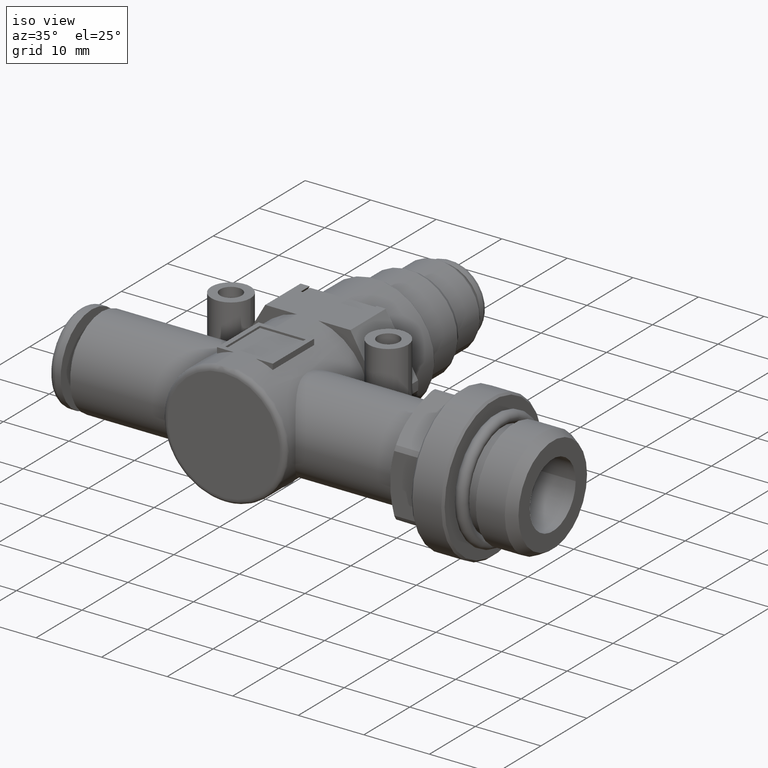
[diagram: clean part render]
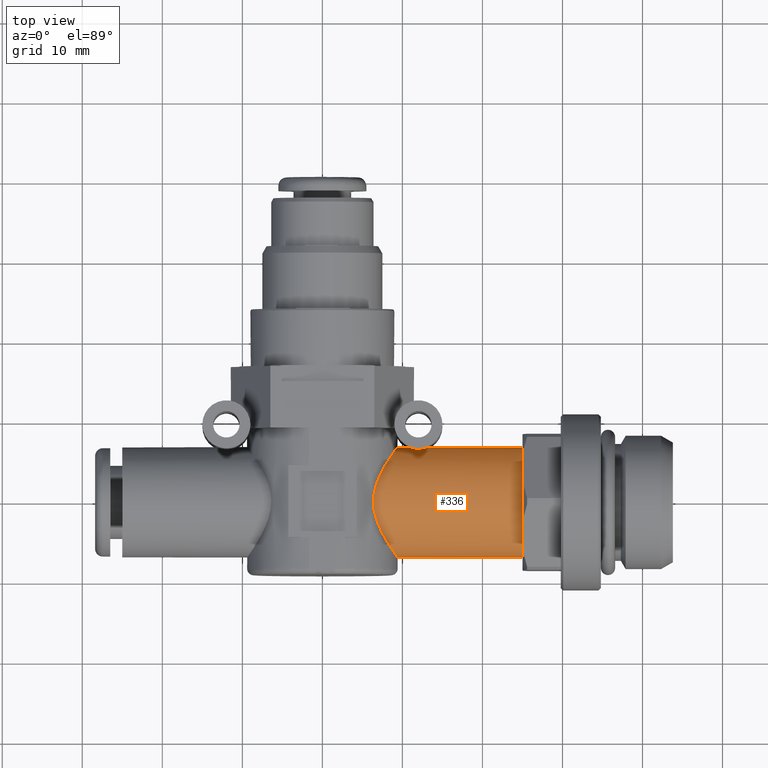
[diagram: tour spotlight — one face highlighted and labeled with its STEP entity id]
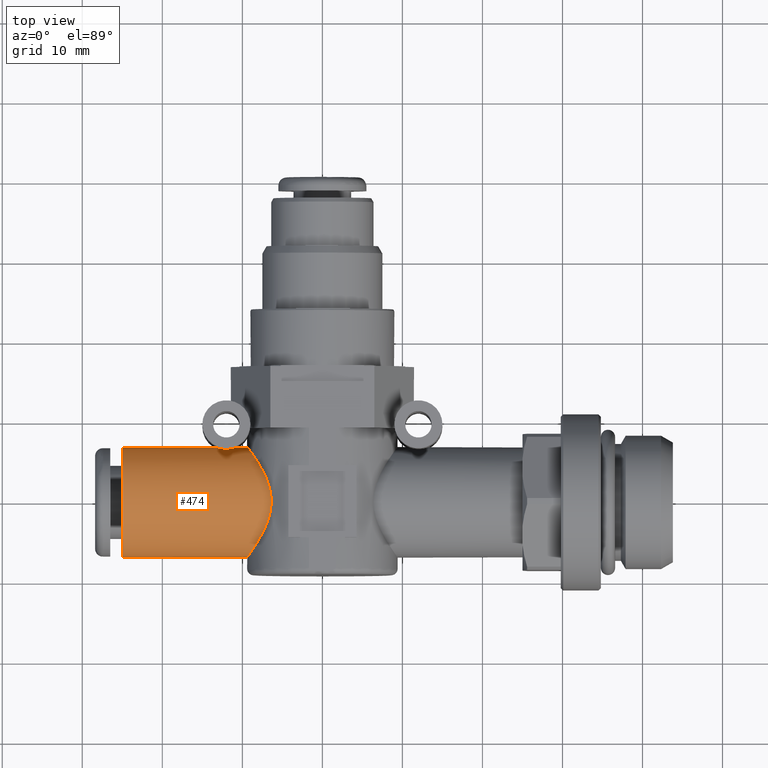
[diagram: tour spotlight — one face highlighted and labeled with its STEP entity id]
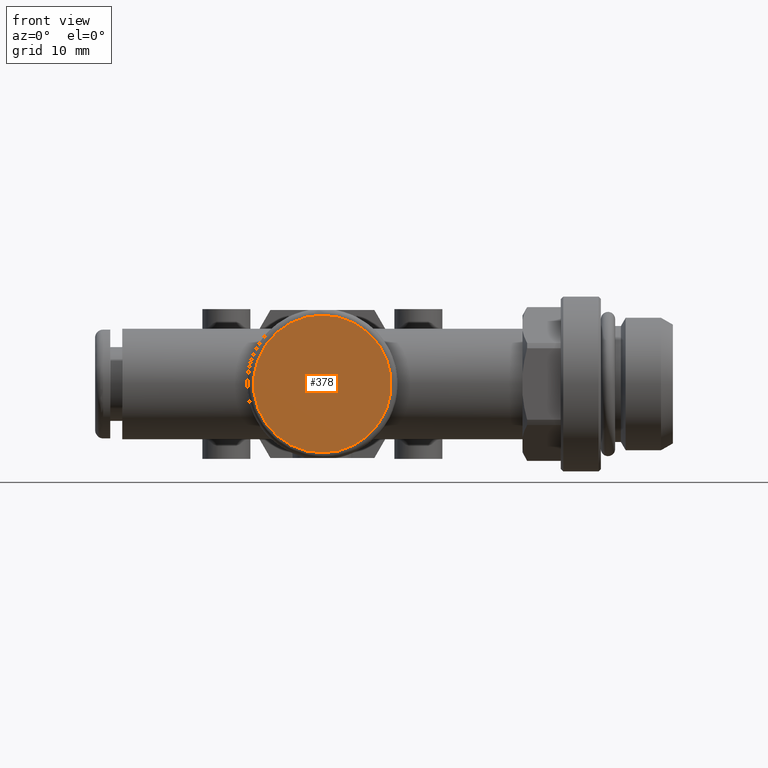
[diagram: tour spotlight — one face highlighted and labeled with its STEP entity id]
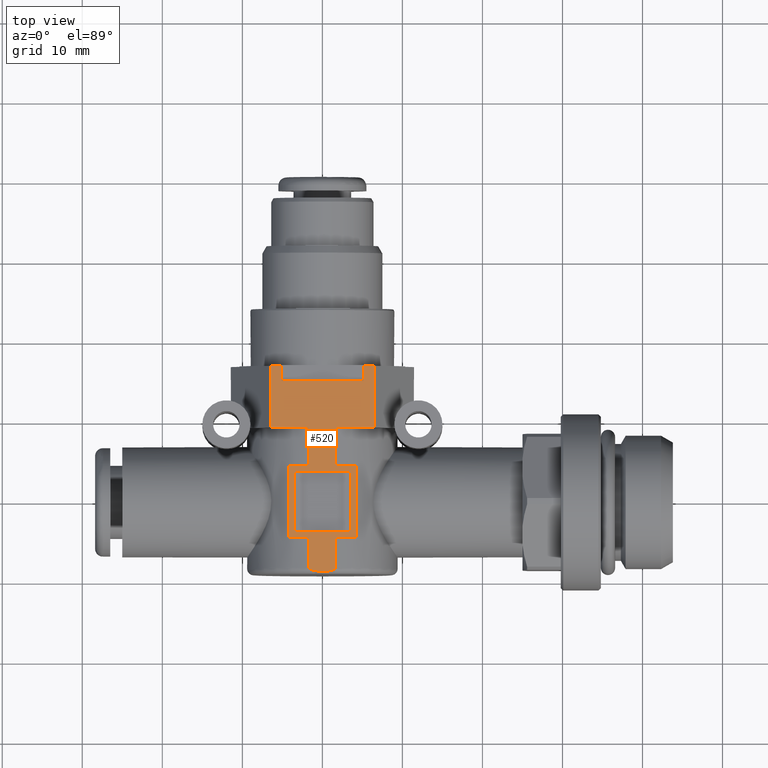
[diagram: tour spotlight — one face highlighted and labeled with its STEP entity id]
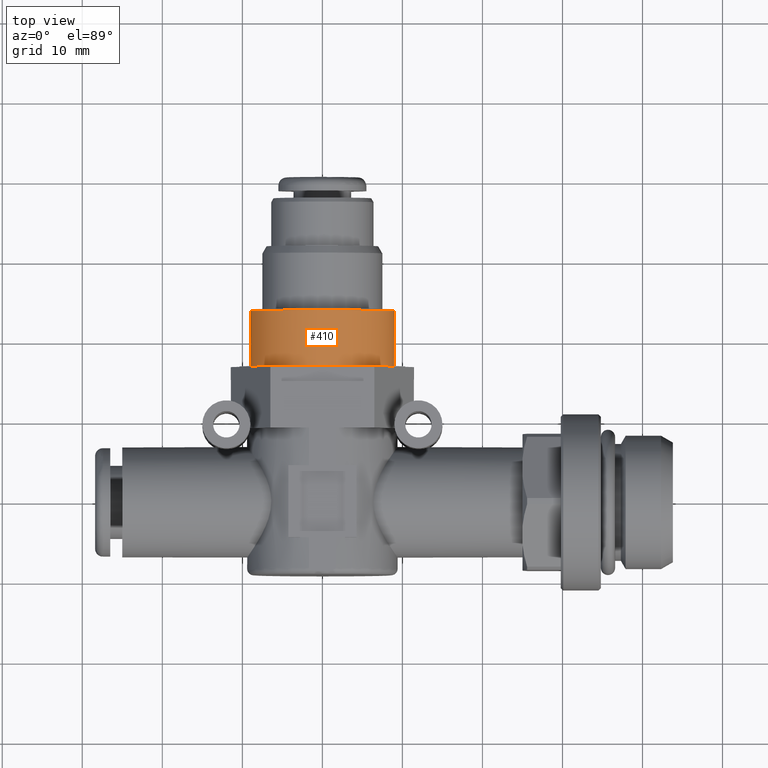
[diagram: tour spotlight — one face highlighted and labeled with its STEP entity id]
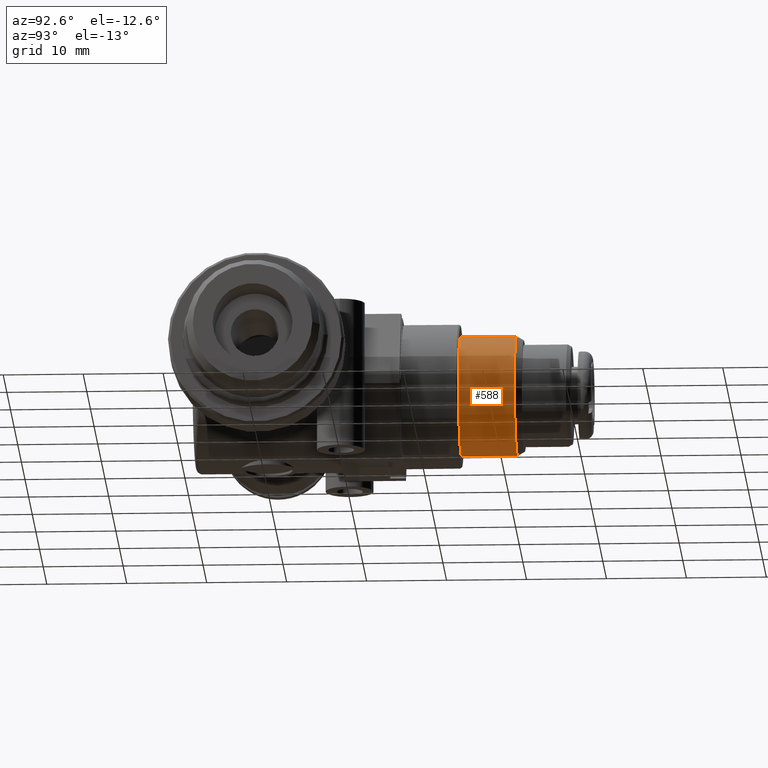
[diagram: tour spotlight — one face highlighted and labeled with its STEP entity id]
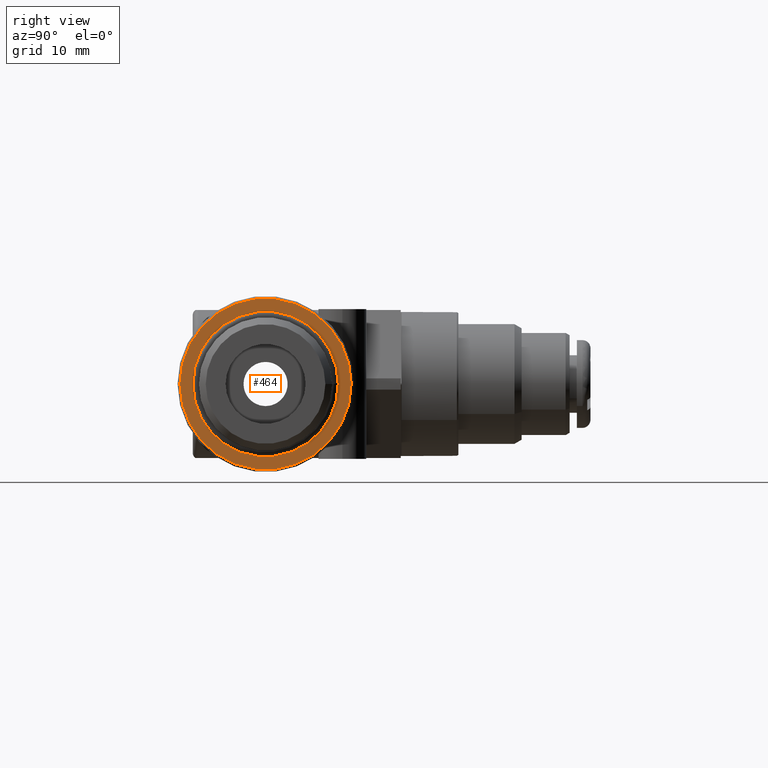
[diagram: tour spotlight — one face highlighted and labeled with its STEP entity id]
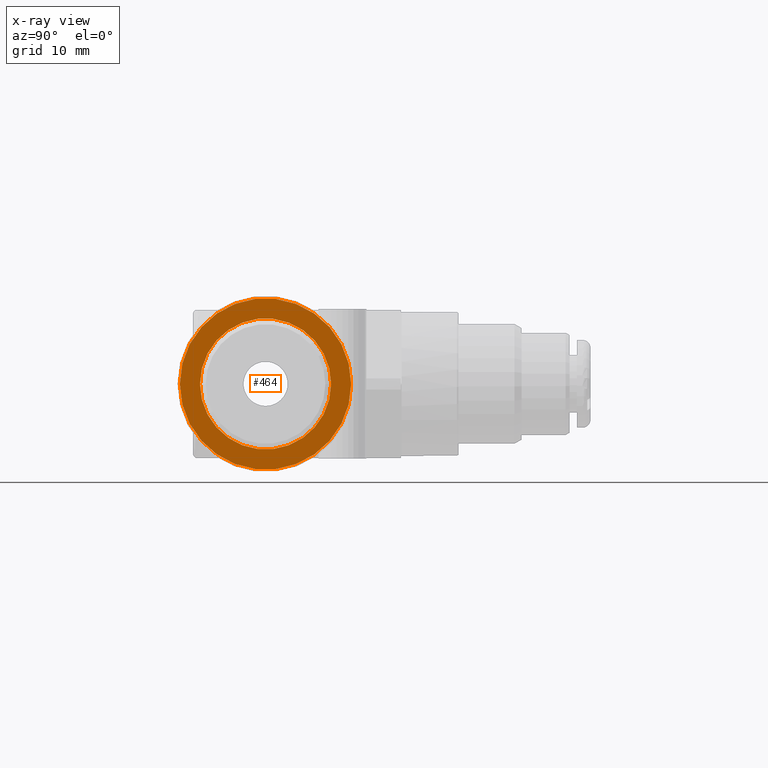
[diagram: x-ray of the same camera — body ghosted, this tour face saturated]
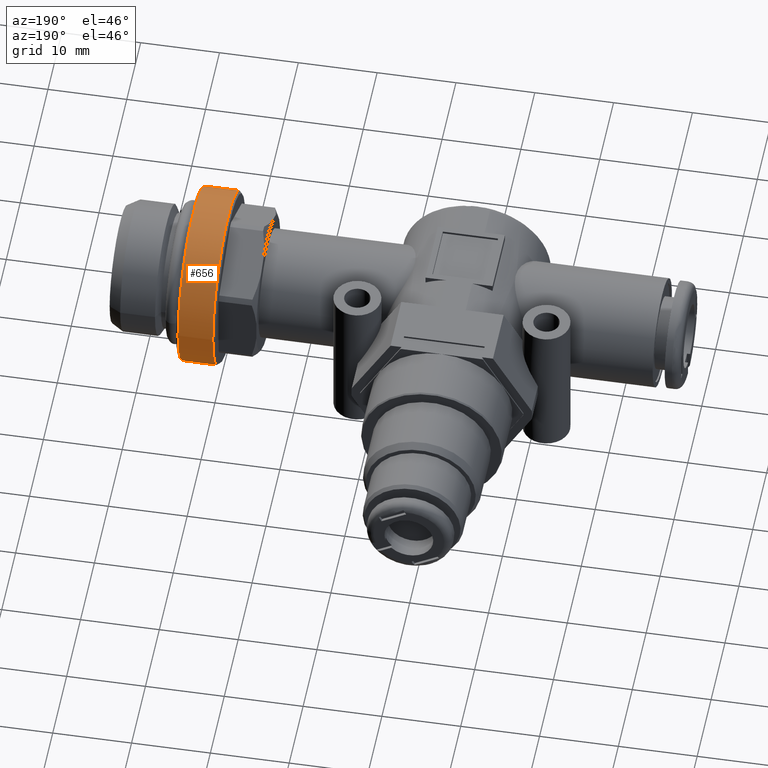
[diagram: tour spotlight — one face highlighted and labeled with its STEP entity id]
A machine part: a face-by-face anatomy tour. The part has 191 B-rep faces; the first image is the clean iso view, then the 8 largest visible faces are spotlighted one at a time (largest first), each with its STEP entity span.

Face 1 — top view, entity #336. In plain terms, the highlighted cylindrical surface (bore or boss wall) has radius 6.9 mm, axis along (-1, 0, 0).
Definition (entity closure, byte-faithful):
#336 = ADVANCED_FACE( '', ( #784, #785, #786 ), #787, .T. );
#784 = FACE_OUTER_BOUND( '', #1469, .T. );
#785 = FACE_BOUND( '', #1470, .T. );
#786 = FACE_OUTER_BOUND( '', #1471, .T. );
#787 = CYLINDRICAL_SURFACE( '', #1472, 6.90000000000000 );
#1469 = EDGE_LOOP( '', ( #2185 ) );
#1470 = EDGE_LOOP( '', ( #2186 ) );
#1471 = EDGE_LOOP( '', ( #2187 ) );
#1472 = AXIS2_PLACEMENT_3D( '', #2188, #2189, #2190 );
#2185 = ORIENTED_EDGE( '', *, *, #3692, .F. );
#2186 = ORIENTED_EDGE( '', *, *, #3693, .F. );
#2187 = ORIENTED_EDGE( '', *, *, #3694, .T. );
#2188 = CARTESIAN_POINT( '', ( 25.0000000000000, 0.000000000000000, 0.000000000000000 ) );
#2189 = DIRECTION( '', ( -1.00000000000000, -0.000000000000000, 0.000000000000000 ) );
#2190 = DIRECTION( '', ( -0.000000000000000, 0.000000000000000, -1.00000000000000 ) );
#3692 = EDGE_CURVE( '', #4307, #4307, #4308, .T. );
#3693 = EDGE_CURVE( '', #4309, #4309, #4310, .T. );
#3694 = EDGE_CURVE( '', #4311, #4311, #4312, .T. );
#4307 = VERTEX_POINT( '', #5198 );
#4308 = CIRCLE( '', #5199, 6.90000000000000 );
#4309 = VERTEX_POINT( '', #5200 );
#4310 = B_SPLINE_CURVE_WITH_KNOTS( '', 3, ( #5201, #5202, #5203, #5204, #5205, #5206, #5207, #5208, #5209, #5210, #5211, #5212, #5213, #5214, #5215, #5216, #5217, #5218, #5219, #5220, #5221, #5222, #5223, #5224, #5225, #5226, #5227, #5228, #5229, #5230, #5231, #5232, #5233, #5234, #5235, #5236, #5237, #5238, #5239, #5240, #5241, #5242, #5243, #5244 ), .UNSPECIFIED., .T., .F., ( 2, 2, 2, 2, 2, 2, 2, 2, 2, 2, 2, 2, 2, 2, 2, 2, 2, 2, 2, 2, 2, 2, 2, 2 ), ( -0.000663314908686696, 0.000000000000000, 0.000663314908686694, 0.00132662981737339, 0.00198994472606008, 0.00232160218040343, 0.00265325963474678, 0.00298491708909013, 0.00331657454343348, 0.00397988945212018, 0.00464320436080687, 0.00530651926949357, 0.00596983417818027, 0.00663314908686696, 0.00729646399555366, 0.00762812144989701, 0.00795977890424036, 0.00829143635858370, 0.00862309381292705, 0.00895475126727040, 0.00928640872161375, 0.00994972363030044, 0.0106130385389871, 0.0112763534476738 ), .UNSPECIFIED. );
#4311 = VERTEX_POINT( '', #5245 );
#4312 = B_SPLINE_CURVE_WITH_KNOTS( '', 3, ( #5246, #5247, #5248, #5249, #5250, #5251, #5252, #5253, #5254, #5255, #5256, #5257, #5258, #5259, #5260, #5261, #5262, #5263, #5264, #5265, #5266, #5267, #5268, #5269, #5270, #5271, #5272, #5273, #5274, #5275, #5276, #5277, #5278, #5279, #5280, #5281, #5282, #5283, #5284, #5285, #5286, #5287, #5288, #5289, #5290, #5291, #5292, #5293, #5294, #5295, #5296, #5297, #5298, #5299, #5300, #5301, #5302, #5303, #5304, #5305, #5306, #5307, #5308, #5309, #5310, #5311, #5312, #5313, #5314, #5315, #5316, #5317, #5318, #5319, #5320, #5321, #5322, #5323, #5324, #5325, #5326, #5327, #5328, #5329, #5330, #5331, #5332, #5333 ), .UNSPECIFIED., .T., .F., ( 2, 2, 2, 2, 2, 2, 2, 2, 2, 2, 2, 2, 2, 2, 2, 2, 2, 2, 2, 2, 2, 2, 2, 2, 2, 2, 2, 2, 2, 2, 2, 2, 2, 2, 2, 2, 2, 2, 2, 2, 2, 2, 2, 2, 2, 2 ), ( -0.00140801741601047, 0.000000000000000, 0.00140801741601047, 0.00281603483202094, 0.00352004354002617, 0.00422405224803140, 0.00563206966404188, 0.00704008708005235, 0.00844810449606282, 0.00915211320406805, 0.00985612191207329, 0.0105601306200785, 0.0112641393280838, 0.0119681480360890, 0.0126721567440942, 0.0140801741601047, 0.0147841828681099, 0.0154881915761152, 0.0168962089921257, 0.0183042264081361, 0.0197122438241466, 0.0211202612401571, 0.0218242699481623, 0.0225282786561675, 0.0239362960721780, 0.0253443134881885, 0.0260483221961937, 0.0267523309041990, 0.0281603483202094, 0.0295683657362199, 0.0309763831522304, 0.0316803918602356, 0.0323844005682409, 0.0330884092762461, 0.0337924179842513, 0.0344964266922566, 0.0352004354002618, 0.0366084528162723, 0.0373124615242775, 0.0380164702322827, 0.0394244876482932, 0.0408325050643037, 0.0422405224803142, 0.0436485398963246, 0.0450565573123351, 0.0464645747283456 ), .UNSPECIFIED. );
#5198 = CARTESIAN_POINT( '', ( 25.0000000000000, 0.000000000000000, -6.90000000000000 ) );
#5199 = AXIS2_PLACEMENT_3D( '', #6894, #6895, #6896 );
#5200 = CARTESIAN_POINT( '', ( 10.6923303169378, 6.90000000000000, 0.000000000000000 ) );
#5201 = CARTESIAN_POINT( '', ( 10.6923303169378, 6.90000000000000, -0.223372458043953 ) );
#5202 = CARTESIAN_POINT( '', ( 10.6923303169378, 6.90000000000000, 0.223372458043953 ) );
#5203 = CARTESIAN_POINT( '', ( 10.7139512423636, 6.88917016355307, 0.443274782966415 ) );
#5204 = CARTESIAN_POINT( '', ( 10.8053640652712, 6.84766194070503, 0.875604945979324 ) );
#5205 = CARTESIAN_POINT( '', ( 10.8753629535739, 6.81670981671288, 1.08691406947181 ) );
#5206 = CARTESIAN_POINT( '', ( 11.0770753660436, 6.74347713984063, 1.47459519330981 ) );
#5207 = CARTESIAN_POINT( '', ( 11.2105667029262, 6.70023306052220, 1.65431009805005 ) );
#5208 = CARTESIAN_POINT( '', ( 11.4725978894323, 6.64537475773597, 1.85848340608793 ) );
#5209 = CARTESIAN_POINT( '', ( 11.5676859332318, 6.62943124992445, 1.91371398316989 ) );
#5210 = CARTESIAN_POINT( '', ( 11.7778401497762, 6.60637023795532, 1.99186650805541 ) );
#5211 = CARTESIAN_POINT( '', ( 11.8864643491262, 6.60004875053598, 2.01230129905222 ) );
#5212 = CARTESIAN_POINT( '', ( 12.1109445560994, 6.59995180894506, 2.01261922559176 ) );
#5213 = CARTESIAN_POINT( '', ( 12.2213779373212, 6.60631051746791, 1.99206300190535 ) );
#5214 = CARTESIAN_POINT( '', ( 12.4316389207332, 6.62933126197752, 1.91405869182083 ) );
#5215 = CARTESIAN_POINT( '', ( 12.5278741754911, 6.64546274819553, 1.85816701958692 ) );
#5216 = CARTESIAN_POINT( '', ( 12.7895400644762, 6.70027715869431, 1.65412370698782 ) );
#5217 = CARTESIAN_POINT( '', ( 12.9228629822962, 6.74345822909121, 1.47466947075658 ) );
#5218 = CARTESIAN_POINT( '', ( 13.1245271766240, 6.81666645870936, 1.08716941006738 ) );
#5219 = CARTESIAN_POINT( '', ( 13.1947958122588, 6.84773407728518, 0.874889253120810 ) );
#5220 = CARTESIAN_POINT( '', ( 13.2859345838451, 6.88911878010131, 0.443774303102876 ) );
#5221 = CARTESIAN_POINT( '', ( 13.3075610836491, 6.89994740292317, 0.224449333281119 ) );
#5222 = CARTESIAN_POINT( '', ( 13.3077774944374, 6.90005221541269, -0.221203731647836 ) );
#5223 = CARTESIAN_POINT( '', ( 13.2861296884393, 6.88921818097250, -0.441895178940651 ) );
#5224 = CARTESIAN_POINT( '', ( 13.1956764300181, 6.84812327300912, -0.871668590625960 ) );
#5225 = CARTESIAN_POINT( '', ( 13.1255604070059, 6.81708742352270, -1.08459848474594 ) );
#5226 = CARTESIAN_POINT( '', ( 12.9240862248988, 6.74385692111073, -1.47289804149897 ) );
#5227 = CARTESIAN_POINT( '', ( 12.7907975025568, 6.70065738615423, -1.65258797155132 ) );
#5228 = CARTESIAN_POINT( '', ( 12.5300651710270, 6.64586425750404, -1.85673163742504 ) );
#5229 = CARTESIAN_POINT( '', ( 12.4338046558688, 6.62967983387610, -1.91285203674129 ) );
#5230 = CARTESIAN_POINT( '', ( 12.2254230785342, 6.60664522577093, -1.99095365967340 ) );
#5231 = CARTESIAN_POINT( '', ( 12.1147350630086, 6.60011989315509, -2.01206798101947 ) );
#5232 = CARTESIAN_POINT( '', ( 11.8916227491032, 6.59988347532709, -2.01284333130271 ) );
#5233 = CARTESIAN_POINT( '', ( 11.7800355546668, 6.60621940774216, -1.99235747638848 ) );
#5234 = CARTESIAN_POINT( '', ( 11.5704983727618, 6.62903467809028, -1.91507765211409 ) );
#5235 = CARTESIAN_POINT( '', ( 11.4739866875253, 6.64511693112195, -1.85940942255562 ) );
#5236 = CARTESIAN_POINT( '', ( 11.2986221775463, 6.68176541282014, -1.72307672406444 ) );
#5237 = CARTESIAN_POINT( '', ( 11.2223082529420, 6.70169241225708, -1.64471454590283 ) );
#5238 = CARTESIAN_POINT( '', ( 11.0867370664864, 6.74151401247438, -1.47300914648214 ) );
#5239 = CARTESIAN_POINT( '', ( 11.0273684885588, 6.76153552003812, -1.37890772815553 ) );
#5240 = CARTESIAN_POINT( '', ( 10.8756926157169, 6.81656623037998, -1.08785167778526 ) );
#5241 = CARTESIAN_POINT( '', ( 10.8056785633163, 6.84752264253858, -0.876784473247790 ) );
#5242 = CARTESIAN_POINT( '', ( 10.7139825959845, 6.88915243253530, -0.443729775764339 ) );
#5243 = CARTESIAN_POINT( '', ( 10.6923303169378, 6.90000000000000, -0.223372458043953 ) );
#5244 = CARTESIAN_POINT( '', ( 10.6923303169378, 6.90000000000000, 0.223372458043953 ) );
#5245 = CARTESIAN_POINT( '', ( 9.40000000000000, -6.90000000000000, -5.75583995599256E-016 ) );
#5246 = CARTESIAN_POINT( '', ( 9.40000000000000, -6.90000000000000, 0.477079065304053 ) );
#5247 = CARTESIAN_POINT( '', ( 9.40000000000000, -6.90000000000000, -0.477079065304053 ) );
#5248 = CARTESIAN_POINT( '', ( 9.36392411072684, -6.85107836074552, -0.943073842527662 ) );
#5249 = CARTESIAN_POINT( '', ( 9.22673369861786, -6.66234303371078, -1.85468279732706 ) );
#5250 = CARTESIAN_POINT( '', ( 9.12400491665865, -6.52024262780445, -2.30267463260368 ) );
#5251 = CARTESIAN_POINT( '', ( 8.93494415818265, -6.25197981933715, -2.92817638400928 ) );
#5252 = CARTESIAN_POINT( '', ( 8.86593388730158, -6.15312390634133, -3.13037575245986 ) );
#5253 = CARTESIAN_POINT( '', ( 8.71740446770089, -5.93711131496438, -3.52291007437030 ) );
#5254 = CARTESIAN_POINT( '', ( 8.63748678677233, -5.81935854344500, -3.71407435473278 ) );
#5255 = CARTESIAN_POINT( '', ( 8.38709377618043, -5.44319441802731, -4.26365608441352 ) );
#5256 = CARTESIAN_POINT( '', ( 8.20686531198224, -5.16359890093293, -4.59730705478497 ) );
#5257 = CARTESIAN_POINT( '', ( 7.83387537511766, -4.54749587724643, -5.20752023636185 ) );
#5258 = CARTESIAN_POINT( '', ( 7.64012926035198, -4.20901641855955, -5.48460057705023 ) );
#5259 = CARTESIAN_POINT( '', ( 7.26978086708697, -3.49198481558569, -5.96680021026368 ) );
#5260 = CARTESIAN_POINT( '', ( 7.09140143553096, -3.11124664908091, -6.17476780252409 ) );
#5261 = CARTESIAN_POINT( '', ( 6.85222938294929, -2.49770251720362, -6.43590595154878 ) );
#5262 = CARTESIAN_POINT( '', ( 6.77694501651860, -2.28463555284390, -6.51476206968361 ) );
#5263 = CARTESIAN_POINT( '', ( 6.64327188142851, -1.85084768227445, -6.65101851530470 ) );
#5264 = CARTESIAN_POINT( '', ( 6.58464127715640, -1.62976392820553, -6.70872964492827 ) );
#5265 = CARTESIAN_POINT( '', ( 6.48764044001397, -1.17818003367596, -6.80257860804758 ) );
#5266 = CARTESIAN_POINT( '', ( 6.44927446936839, -0.947680532793927, -6.83872360915415 ) );
#5267 = CARTESIAN_POINT( '', ( 6.39699449431941, -0.475915718738623, -6.88765150274725 ) );
#5268 = CARTESIAN_POINT( '', ( 6.38372470262382, -0.239200582522910, -6.89985934373102 ) );
#5269 = CARTESIAN_POINT( '', ( 6.38342325573405, 0.231015803866398, -6.90013822907306 ) );
#5270 = CARTESIAN_POINT( '', ( 6.39629871489044, 0.465304450284490, -6.88829247575381 ) );
#5271 = CARTESIAN_POINT( '', ( 6.44711368461325, 0.932279917016811, -6.84075548600505 ) );
#5272 = CARTESIAN_POINT( '', ( 6.48551137299522, 1.16664395889886, -6.80460724087781 ) );
#5273 = CARTESIAN_POINT( '', ( 6.63079100478988, 1.84775290002264, -6.66413989485706 ) );
#5274 = CARTESIAN_POINT( '', ( 6.76704826838905, 2.27737397826084, -6.52860960117789 ) );
#5275 = CARTESIAN_POINT( '', ( 7.00634212732634, 2.89390782466992, -6.26778201540841 ) );
#5276 = CARTESIAN_POINT( '', ( 7.09206366428060, 3.09461723653541, -6.17100296742761 ) );
#5277 = CARTESIAN_POINT( '', ( 7.26831478526354, 3.47961041499382, -5.96240260503507 ) );
#5278 = CARTESIAN_POINT( '', ( 7.35928361104620, 3.66505242439573, -5.85012248351791 ) );
#5279 = CARTESIAN_POINT( '', ( 7.63654949311563, 4.20251165183724, -5.48954143796139 ) );
#5280 = CARTESIAN_POINT( '', ( 7.82710363960502, 4.53593779208348, -5.21781823880061 ) );
#5281 = CARTESIAN_POINT( '', ( 8.20268109665764, 5.15704929606045, -4.60491057294427 ) );
#5282 = CARTESIAN_POINT( '', ( 8.38315245333787, 5.43705972575660, -4.27087214156552 ) );
#5283 = CARTESIAN_POINT( '', ( 8.71339513282997, 5.93360161675560, -3.54885040043676 ) );
#5284 = CARTESIAN_POINT( '', ( 8.86428334505474, 6.15160175024531, -3.15881087779594 ) );
#5285 = CARTESIAN_POINT( '', ( 9.12059928844106, 6.51552118042125, -2.31695360393456 ) );
#5286 = CARTESIAN_POINT( '', ( 9.22190796594332, 6.65567093822363, -1.87882963895178 ) );
#5287 = CARTESIAN_POINT( '', ( 9.32677734206764, 6.79999028417709, -1.19357498617676 ) );
#5288 = CARTESIAN_POINT( '', ( 9.35393144327802, 6.83712811323091, -0.959219551558725 ) );
#5289 = CARTESIAN_POINT( '', ( 9.39037785082055, 6.88690667661241, -0.486764226763239 ) );
#5290 = CARTESIAN_POINT( '', ( 9.39972542035229, 6.89962593477217, -0.249300120112782 ) );
#5291 = CARTESIAN_POINT( '', ( 9.40053130530115, 6.90072380761627, 0.466867529042098 ) );
#5292 = CARTESIAN_POINT( '', ( 9.36489034445907, 6.85239555419059, 0.933674466414788 ) );
#5293 = CARTESIAN_POINT( '', ( 9.22842113601974, 6.66467631105098, 1.84639175400069 ) );
#5294 = CARTESIAN_POINT( '', ( 9.12594892615210, 6.52295858025507, 2.29507084434862 ) );
#5295 = CARTESIAN_POINT( '', ( 8.93711338524297, 6.25507848631301, 2.92157112443627 ) );
#5296 = CARTESIAN_POINT( '', ( 8.86815835418895, 6.15632760961456, 3.12408650359753 ) );
#5297 = CARTESIAN_POINT( '', ( 8.71970608495804, 5.94048914231696, 3.51722545039084 ) );
#5298 = CARTESIAN_POINT( '', ( 8.63981526474076, 5.82281342780031, 3.70867082902387 ) );
#5299 = CARTESIAN_POINT( '', ( 8.38937621273163, 5.44670789222667, 4.25922003057515 ) );
#5300 = CARTESIAN_POINT( '', ( 8.20905951761493, 5.16708526361787, 4.59342595241961 ) );
#5301 = CARTESIAN_POINT( '', ( 7.83581776479568, 4.55084080152669, 5.20463064021058 ) );
#5302 = CARTESIAN_POINT( '', ( 7.64188141385334, 4.21220422682517, 5.48218413188963 ) );
#5303 = CARTESIAN_POINT( '', ( 7.27111085070199, 3.49476263976295, 5.96520254443580 ) );
#5304 = CARTESIAN_POINT( '', ( 7.09250599128354, 3.11378778249588, 6.17351284959538 ) );
#5305 = CARTESIAN_POINT( '', ( 6.85300504525107, 2.49983728065319, 6.43508332384993 ) );
#5306 = CARTESIAN_POINT( '', ( 6.77760948193754, 2.28661945975137, 6.51407316284140 ) );
#5307 = CARTESIAN_POINT( '', ( 6.64372150650404, 1.85247772457544, 6.65057170508792 ) );
#5308 = CARTESIAN_POINT( '', ( 6.58499353539737, 1.63121054954961, 6.70838506524126 ) );
#5309 = CARTESIAN_POINT( '', ( 6.48782783334593, 1.17924466964023, 6.80240105033797 ) );
#5310 = CARTESIAN_POINT( '', ( 6.44939437801225, 0.948546606405433, 6.83861086567778 ) );
#5311 = CARTESIAN_POINT( '', ( 6.39702055402216, 0.476366235127084, 6.88762763560287 ) );
#5312 = CARTESIAN_POINT( '', ( 6.38372502220728, 0.239422516248013, 6.89985904806641 ) );
#5313 = CARTESIAN_POINT( '', ( 6.38342294232099, -0.231228118275510, 6.90013851902910 ) );
#5314 = CARTESIAN_POINT( '', ( 6.39632222257764, -0.465732373946127, 6.88827096986586 ) );
#5315 = CARTESIAN_POINT( '', ( 6.44722997708257, -0.933136135026934, 6.84064620865202 ) );
#5316 = CARTESIAN_POINT( '', ( 6.48569735896868, -1.16771039079440, 6.80443111974400 ) );
#5317 = CARTESIAN_POINT( '', ( 6.63122132375690, -1.84937977257018, 6.66371639081730 ) );
#5318 = CARTESIAN_POINT( '', ( 6.76769595952251, -2.27933724636236, 6.52795205003597 ) );
#5319 = CARTESIAN_POINT( '', ( 7.00734206589306, -2.89633565889104, 6.26666768016241 ) );
#5320 = CARTESIAN_POINT( '', ( 7.09317489095685, -3.09716694698827, 6.16973007278199 ) );
#5321 = CARTESIAN_POINT( '', ( 7.26964173048899, -3.48238480835805, 5.96078923591701 ) );
#5322 = CARTESIAN_POINT( '', ( 7.36071641782349, -3.66793069416507, 5.84832530197086 ) );
#5323 = CARTESIAN_POINT( '', ( 7.63828740303552, -4.20567616747878, 5.48714731292904 ) );
#5324 = CARTESIAN_POINT( '', ( 7.82902861852479, -4.53926017274211, 5.21496696102698 ) );
#5325 = CARTESIAN_POINT( '', ( 8.20491402810414, -5.16060151675585, 4.60097329982504 ) );
#5326 = CARTESIAN_POINT( '', ( 8.38542147468116, -5.44055435624708, 4.26646623925434 ) );
#5327 = CARTESIAN_POINT( '', ( 8.71569532691859, -5.93697594966541, 3.54325873273045 ) );
#5328 = CARTESIAN_POINT( '', ( 8.86659096938920, -6.15492138932021, 3.15239800829120 ) );
#5329 = CARTESIAN_POINT( '', ( 9.12254462523336, -6.51823920469565, 2.30937831066251 ) );
#5330 = CARTESIAN_POINT( '', ( 9.22360332257670, -6.65801637558270, 1.87063901960954 ) );
#5331 = CARTESIAN_POINT( '', ( 9.36274069264229, -6.84946983955248, 0.955633463349800 ) );
#5332 = CARTESIAN_POINT( '', ( 9.40000000000000, -6.90000000000000, 0.477079065304053 ) );
#5333 = CARTESIAN_POINT( '', ( 9.40000000000000, -6.90000000000000, -0.477079065304053 ) );
#6894 = CARTESIAN_POINT( '', ( 25.0000000000000, 0.000000000000000, 0.000000000000000 ) );
#6895 = DIRECTION( '', ( 1.00000000000000, 0.000000000000000, -0.000000000000000 ) );
#6896 = DIRECTION( '', ( -0.000000000000000, 0.000000000000000, -1.00000000000000 ) );

Face 2 — top view, entity #474. In plain terms, the highlighted cylindrical surface (bore or boss wall) has radius 6.9 mm, axis along (-1, 0, 0).
Definition (entity closure, byte-faithful):
#474 = ADVANCED_FACE( '', ( #1023, #1024, #1025 ), #1026, .T. );
#1023 = FACE_OUTER_BOUND( '', #1708, .T. );
#1024 = FACE_BOUND( '', #1709, .T. );
#1025 = FACE_OUTER_BOUND( '', #1710, .T. );
#1026 = CYLINDRICAL_SURFACE( '', #1711, 6.90000000000000 );
#1708 = EDGE_LOOP( '', ( #2721 ) );
#1709 = EDGE_LOOP( '', ( #2722 ) );
#1710 = EDGE_LOOP( '', ( #2723 ) );
#1711 = AXIS2_PLACEMENT_3D( '', #2724, #2725, #2726 );
#2721 = ORIENTED_EDGE( '', *, *, #3963, .T. );
#2722 = ORIENTED_EDGE( '', *, *, #3964, .F. );
#2723 = ORIENTED_EDGE( '', *, *, #3965, .T. );
#2724 = CARTESIAN_POINT( '', ( 25.0000000000000, 0.000000000000000, 0.000000000000000 ) );
#2725 = DIRECTION( '', ( -1.00000000000000, -0.000000000000000, 0.000000000000000 ) );
#2726 = DIRECTION( '', ( -0.000000000000000, 0.000000000000000, -1.00000000000000 ) );
#3963 = EDGE_CURVE( '', #4740, #4740, #4741, .T. );
#3964 = EDGE_CURVE( '', #4742, #4742, #4743, .T. );
#3965 = EDGE_CURVE( '', #4744, #4744, #4745, .T. );
#4740 = VERTEX_POINT( '', #6011 );
#4741 = B_SPLINE_CURVE_WITH_KNOTS( '', 3, ( #6012, #6013, #6014, #6015, #6016, #6017, #6018, #6019, #6020, #6021, #6022, #6023, #6024, #6025, #6026, #6027, #6028, #6029, #6030, #6031, #6032, #6033, #6034, #6035, #6036, #6037, #6038, #6039, #6040, #6041, #6042, #6043, #6044, #6045, #6046, #6047, #6048, #6049, #6050, #6051, #6052, #6053, #6054, #6055, #6056, #6057, #6058, #6059, #6060, #6061, #6062, #6063, #6064, #6065, #6066, #6067, #6068, #6069, #6070, #6071, #6072, #6073, #6074, #6075, #6076, #6077, #6078, #6079, #6080, #6081, #6082, #6083, #6084, #6085, #6086, #6087, #6088, #6089, #6090, #6091, #6092, #6093, #6094, #6095, #6096, #6097, #6098, #6099, #6100, #6101, #6102, #6103, #6104, #6105 ), .UNSPECIFIED., .T., .F., ( 2, 2, 2, 2, 2, 2, 2, 2, 2, 2, 2, 2, 2, 2, 2, 2, 2, 2, 2, 2, 2, 2, 2, 2, 2, 2, 2, 2, 2, 2, 2, 2, 2, 2, 2, 2, 2, 2, 2, 2, 2, 2, 2, 2, 2, 2, 2, 2, 2 ), ( -0.000702008100535227, 0.000000000000000, 0.00140401620107045, 0.00210602430160568, 0.00280803240214091, 0.00351004050267613, 0.00421204860321136, 0.00561606480428182, 0.00702008100535227, 0.00842409720642272, 0.00912610530695795, 0.00982811340749317, 0.0105301215080284, 0.0112321296085636, 0.0126361458096341, 0.0133381539101693, 0.0140401620107045, 0.0154441782117750, 0.0168481944128454, 0.0182522106139159, 0.0189542187144511, 0.0196562268149863, 0.0210602430160568, 0.0217622511165920, 0.0224642592171273, 0.0231662673176625, 0.0238682754181977, 0.0245702835187329, 0.0252722916192682, 0.0266763078203386, 0.0280803240214091, 0.0287823321219443, 0.0294843402224795, 0.0308883564235500, 0.0315903645240852, 0.0322923726246204, 0.0329943807251557, 0.0336963888256909, 0.0351004050267613, 0.0358024131272966, 0.0365044212278318, 0.0379084374289023, 0.0393124536299727, 0.0407164698310432, 0.0421204860321136, 0.0435245022331841, 0.0442265103337193, 0.0449285184342545, 0.0463325346353250 ), .UNSPECIFIED. );
#4742 = VERTEX_POINT( '', #6106 );
#4743 = B_SPLINE_CURVE_WITH_KNOTS( '', 3, ( #6107, #6108, #6109, #6110, #6111, #6112, #6113, #6114, #6115, #6116, #6117, #6118, #6119, #6120, #6121, #6122, #6123, #6124, #6125, #6126, #6127, #6128, #6129, #6130, #6131, #6132, #6133, #6134, #6135, #6136, #6137, #6138, #6139, #6140, #6141, #6142, #6143, #6144, #6145, #6146, #6147, #6148, #6149, #6150 ), .UNSPECIFIED., .T., .F., ( 2, 2, 2, 2, 2, 2, 2, 2, 2, 2, 2, 2, 2, 2, 2, 2, 2, 2, 2, 2, 2, 2, 2, 2 ), ( -0.000663314908686698, 0.000000000000000, 0.000663314908686693, 0.00132662981737339, 0.00198994472606008, 0.00232160218040343, 0.00265325963474677, 0.00298491708909012, 0.00331657454343347, 0.00397988945212017, 0.00464320436080687, 0.00530651926949356, 0.00596983417818026, 0.00663314908686695, 0.00729646399555365, 0.00762812144989700, 0.00795977890424035, 0.00829143635858370, 0.00862309381292705, 0.00895475126727040, 0.00928640872161375, 0.00994972363030045, 0.0106130385389871, 0.0112763534476738 ), .UNSPECIFIED. );
#4744 = VERTEX_POINT( '', #6151 );
#4745 = CIRCLE( '', #6152, 6.90000000000000 );
#6011 = CARTESIAN_POINT( '', ( -6.38357266740185, 0.000000000000000, -6.90000000000000 ) );
#6012 = CARTESIAN_POINT( '', ( -6.38357266740185, 0.238755414381908, -6.90000000000000 ) );
#6013 = CARTESIAN_POINT( '', ( -6.38357266740185, -0.477510828763817, -6.90000000000000 ) );
#6014 = CARTESIAN_POINT( '', ( -6.43742201093186, -0.940291768259289, -6.85108667742101 ) );
#6015 = CARTESIAN_POINT( '', ( -6.58127005133579, -1.61602973495721, -6.71202891929721 ) );
#6016 = CARTESIAN_POINT( '', ( -6.64010727453562, -1.83950846121535, -6.65417302240478 ) );
#6017 = CARTESIAN_POINT( '', ( -6.77336947818317, -2.27404943867220, -6.51847444893797 ) );
#6018 = CARTESIAN_POINT( '', ( -6.84735305951136, -2.48428523734465, -6.44107964484240 ) );
#6019 = CARTESIAN_POINT( '', ( -7.00590112324694, -2.89276334455511, -6.26826135097205 ) );
#6020 = CARTESIAN_POINT( '', ( -7.09047584017320, -3.09099840755048, -6.17283041896097 ) );
#6021 = CARTESIAN_POINT( '', ( -7.26695891845220, -3.47679672081526, -5.96405827426743 ) );
#6022 = CARTESIAN_POINT( '', ( -7.35915557876869, -3.66483795271670, -5.85031107272369 ) );
#6023 = CARTESIAN_POINT( '', ( -7.63832528913835, -4.20588620522379, -5.48718768568498 ) );
#6024 = CARTESIAN_POINT( '', ( -7.82887815625150, -4.53890421518641, -5.21498871171084 ) );
#6025 = CARTESIAN_POINT( '', ( -8.20186117341684, -5.15566145098839, -4.60618212196399 ) );
#6026 = CARTESIAN_POINT( '', ( -8.38469564396348, -5.43943095444135, -4.26783838872101 ) );
#6027 = CARTESIAN_POINT( '', ( -8.71465014945354, -5.93543724535986, -3.54576343355989 ) );
#6028 = CARTESIAN_POINT( '', ( -8.86383836300231, -6.15093556916549, -3.15935251121356 ) );
#6029 = CARTESIAN_POINT( '', ( -9.05422679126002, -6.42130183453630, -2.53540172681074 ) );
#6030 = CARTESIAN_POINT( '', ( -9.11243858811975, -6.50299489058181, -2.31833570690035 ) );
#6031 = CARTESIAN_POINT( '', ( -9.21344777085957, -6.64379600462238, -1.87712483489671 ) );
#6032 = CARTESIAN_POINT( '', ( -9.25636252738743, -6.70308413190946, -1.65310072459933 ) );
#6033 = CARTESIAN_POINT( '', ( -9.32618325400072, -6.79917522411635, -1.19803804484235 ) );
#6034 = CARTESIAN_POINT( '', ( -9.35309286566130, -6.83598108372099, -0.967000613878974 ) );
#6035 = CARTESIAN_POINT( '', ( -9.38977620086767, -6.88608657552951, -0.497533153212601 ) );
#6036 = CARTESIAN_POINT( '', ( -9.39941747069835, -6.89920640751378, -0.258297088996277 ) );
#6037 = CARTESIAN_POINT( '', ( -9.40108677391745, -6.90148053614327, 0.450146829254572 ) );
#6038 = CARTESIAN_POINT( '', ( -9.36679164605016, -6.85499399813491, 0.916692731201142 ) );
#6039 = CARTESIAN_POINT( '', ( -9.26436049027211, -6.71412053341334, 1.60807416877240 ) );
#6040 = CARTESIAN_POINT( '', ( -9.22187134427080, -6.65546395915984, 1.83522805002108 ) );
#6041 = CARTESIAN_POINT( '', ( -9.12313030047944, -6.51795948905167, 2.27584415247200 ) );
#6042 = CARTESIAN_POINT( '', ( -9.06670286239740, -6.43887289443556, 2.49051714276644 ) );
#6043 = CARTESIAN_POINT( '', ( -8.87836155191126, -6.17180988602398, 3.11862179291091 ) );
#6044 = CARTESIAN_POINT( '', ( -8.72632524600671, -5.95256937611434, 3.51737526219702 ) );
#6045 = CARTESIAN_POINT( '', ( -8.39520256453325, -5.45561692001060, 4.24749984516350 ) );
#6046 = CARTESIAN_POINT( '', ( -8.21410069906515, -5.17512578033832, 4.58456995444504 ) );
#6047 = CARTESIAN_POINT( '', ( -7.83919364063735, -4.55669106735894, 5.19968989711634 ) );
#6048 = CARTESIAN_POINT( '', ( -7.64846418824297, -4.22408236248329, 5.47303573147444 ) );
#6049 = CARTESIAN_POINT( '', ( -7.37014986753721, -3.68681107618910, 5.83645201036117 ) );
#6050 = CARTESIAN_POINT( '', ( -7.27870118209872, -3.50125697717797, 5.94974639494748 ) );
#6051 = CARTESIAN_POINT( '', ( -7.10124443924857, -3.11560300871451, 6.16046268363969 ) );
#6052 = CARTESIAN_POINT( '', ( -7.01522204534830, -2.91526529796802, 6.25784959648937 ) );
#6053 = CARTESIAN_POINT( '', ( -6.77542519990469, -2.30176286517233, 6.51994639792294 ) );
#6054 = CARTESIAN_POINT( '', ( -6.63771216829412, -1.87278000153397, 6.65730317358942 ) );
#6055 = CARTESIAN_POINT( '', ( -6.48953389433436, -1.18893679056999, 6.80078502290996 ) );
#6056 = CARTESIAN_POINT( '', ( -6.45070795434634, -0.956681583738530, 6.83737227908056 ) );
#6057 = CARTESIAN_POINT( '', ( -6.39821339664473, -0.490653859050833, 6.88652003017506 ) );
#6058 = CARTESIAN_POINT( '', ( -6.38430182714788, -0.255763464348492, 6.89932540849994 ) );
#6059 = CARTESIAN_POINT( '', ( -6.38289944872185, 0.217969039236198, 6.90062283710701 ) );
#6060 = CARTESIAN_POINT( '', ( -6.39573654983131, 0.457807708206330, 6.88881312512721 ) );
#6061 = CARTESIAN_POINT( '', ( -6.44617335503068, 0.925901077843870, 6.84164025396437 ) );
#6062 = CARTESIAN_POINT( '', ( -6.48362638724053, 1.15606038550309, 6.80639697891775 ) );
#6063 = CARTESIAN_POINT( '', ( -6.57958377540776, 1.60934369953000, 6.71368217197786 ) );
#6064 = CARTESIAN_POINT( '', ( -6.63852703912949, 1.83383337540170, 6.65574780986506 ) );
#6065 = CARTESIAN_POINT( '', ( -6.77165304958259, 2.26896201453551, 6.52025575678253 ) );
#6066 = CARTESIAN_POINT( '', ( -6.84552363885285, 2.47923188063407, 6.44301806790570 ) );
#6067 = CARTESIAN_POINT( '', ( -7.08277667064265, 3.09149036512111, 6.18457577264682 ) );
#6068 = CARTESIAN_POINT( '', ( -7.26180133623288, 3.47572003144079, 5.97665531719555 ) );
#6069 = CARTESIAN_POINT( '', ( -7.63614528863139, 4.20209304503512, 5.49030532469626 ) );
#6070 = CARTESIAN_POINT( '', ( -7.82716016450412, 4.53593490876500, 5.21752551243643 ) );
#6071 = CARTESIAN_POINT( '', ( -8.10660093210324, 4.99820427616913, 4.76180359801348 ) );
#6072 = CARTESIAN_POINT( '', ( -8.19861752475949, 5.14578755272072, 4.60207004970124 ) );
#6073 = CARTESIAN_POINT( '', ( -8.37854890350552, 5.42788006028833, 4.26571170277798 ) );
#6074 = CARTESIAN_POINT( '', ( -8.46623915054735, 5.56200684913802, 4.08935505118333 ) );
#6075 = CARTESIAN_POINT( '', ( -8.71574045200451, 5.93708606717958, 3.54344306133027 ) );
#6076 = CARTESIAN_POINT( '', ( -8.86575038831154, 6.15369602076119, 3.15429749460710 ) );
#6077 = CARTESIAN_POINT( '', ( -9.05662298734539, 6.42468140275721, 2.52692713056191 ) );
#6078 = CARTESIAN_POINT( '', ( -9.11474674440464, 6.50622605094993, 2.30917524359221 ) );
#6079 = CARTESIAN_POINT( '', ( -9.21503198913254, 6.64599005206604, 1.86924689635103 ) );
#6080 = CARTESIAN_POINT( '', ( -9.25758699901983, 6.70477343034637, 1.64607377387092 ) );
#6081 = CARTESIAN_POINT( '', ( -9.32677898490670, 6.79999087801997, 1.19317629885508 ) );
#6082 = CARTESIAN_POINT( '', ( -9.35341920657973, 6.83642718137245, 0.963452832607108 ) );
#6083 = CARTESIAN_POINT( '', ( -9.38975744186491, 6.88606059872049, 0.497139213516564 ) );
#6084 = CARTESIAN_POINT( '', ( -9.39944358117190, 6.89924197855280, 0.258837577212618 ) );
#6085 = CARTESIAN_POINT( '', ( -9.40104203520024, 6.90141958727103, -0.454482959462074 ) );
#6086 = CARTESIAN_POINT( '', ( -9.36622300312256, 6.85421482115788, -0.921266567826684 ) );
#6087 = CARTESIAN_POINT( '', ( -9.26416266426484, 6.71384701475602, -1.60903899528434 ) );
#6088 = CARTESIAN_POINT( '', ( -9.22144790668840, 6.65487937090042, -1.83747913830282 ) );
#6089 = CARTESIAN_POINT( '', ( -9.12210883207452, 6.51653186055897, -2.28003542412262 ) );
#6090 = CARTESIAN_POINT( '', ( -9.06545316967807, 6.43711385447383, -2.49505019349591 ) );
#6091 = CARTESIAN_POINT( '', ( -8.87692499266870, 6.16974648918394, -3.12267020885876 ) );
#6092 = CARTESIAN_POINT( '', ( -8.72479964713258, 5.95035678511369, -3.52126760294399 ) );
#6093 = CARTESIAN_POINT( '', ( -8.39248102905515, 5.45145437572344, -4.25296562307965 ) );
#6094 = CARTESIAN_POINT( '', ( -8.21220621469405, 5.17213068846367, -4.58795508547980 ) );
#6095 = CARTESIAN_POINT( '', ( -7.83715184403438, 4.55319162482093, -5.20276020517843 ) );
#6096 = CARTESIAN_POINT( '', ( -7.64467369039149, 4.21723526371674, -5.47829959543202 ) );
#6097 = CARTESIAN_POINT( '', ( -7.27392419797625, 3.50057290666494, -5.96178069472284 ) );
#6098 = CARTESIAN_POINT( '', ( -7.09383921473525, 3.11717385939469, -6.17205147515503 ) );
#6099 = CARTESIAN_POINT( '', ( -6.77202871713222, 2.29228946925151, -6.52352675098490 ) );
#6100 = CARTESIAN_POINT( '', ( -6.63473707788665, 1.86179143157878, -6.66023832758019 ) );
#6101 = CARTESIAN_POINT( '', ( -6.48808425514944, 1.18083449831976, -6.80216071305986 ) );
#6102 = CARTESIAN_POINT( '', ( -6.44914684373914, 0.946634712586457, -6.83884330756224 ) );
#6103 = CARTESIAN_POINT( '', ( -6.39705019393497, 0.476312345721351, -6.88759911825419 ) );
#6104 = CARTESIAN_POINT( '', ( -6.38357266740185, 0.238755414381908, -6.90000000000000 ) );
#6105 = CARTESIAN_POINT( '', ( -6.38357266740185, -0.477510828763817, -6.90000000000000 ) );
#6106 = CARTESIAN_POINT( '', ( -13.3076696830622, 6.90000000000000, 0.000000000000000 ) );
#6107 = CARTESIAN_POINT( '', ( -13.3076696830622, 6.90000000000000, -0.223372458043955 ) );
#6108 = CARTESIAN_POINT( '', ( -13.3076696830622, 6.90000000000000, 0.223372458043953 ) );
#6109 = CARTESIAN_POINT( '', ( -13.2860487576364, 6.88917016355307, 0.443274782966415 ) );
#6110 = CARTESIAN_POINT( '', ( -13.1946359347288, 6.84766194070503, 0.875604945979323 ) );
#6111 = CARTESIAN_POINT( '', ( -13.1246370464261, 6.81670981671288, 1.08691406947181 ) );
#6112 = CARTESIAN_POINT( '', ( -12.9229246339564, 6.74347713984063, 1.47459519330981 ) );
#6113 = CARTESIAN_POINT( '', ( -12.7894332970738, 6.70023306052220, 1.65431009805005 ) );
#6114 = CARTESIAN_POINT( '', ( -12.5274021105677, 6.64537475773597, 1.85848340608793 ) );
#6115 = CARTESIAN_POINT( '', ( -12.4323140667682, 6.62943124992445, 1.91371398316989 ) );
#6116 = CARTESIAN_POINT( '', ( -12.2221598502238, 6.60637023795532, 1.99186650805541 ) );
#6117 = CARTESIAN_POINT( '', ( -12.1135356508738, 6.60004875053597, 2.01230129905222 ) );
#6118 = CARTESIAN_POINT( '', ( -11.8890554439006, 6.59995180894506, 2.01261922559176 ) );
#6119 = CARTESIAN_POINT( '', ( -11.7786220626788, 6.60631051746792, 1.99206300190535 ) );
#6120 = CARTESIAN_POINT( '', ( -11.5683610792668, 6.62933126197752, 1.91405869182083 ) );
#6121 = CARTESIAN_POINT( '', ( -11.4721258245089, 6.64546274819553, 1.85816701958692 ) );
#6122 = CARTESIAN_POINT( '', ( -11.2104599355238, 6.70027715869432, 1.65412370698782 ) );
#6123 = CARTESIAN_POINT( '', ( -11.0771370177038, 6.74345822909121, 1.47466947075658 ) );
#6124 = CARTESIAN_POINT( '', ( -10.8754728233760, 6.81666645870936, 1.08716941006738 ) );
#6125 = CARTESIAN_POINT( '', ( -10.8052041877412, 6.84773407728518, 0.874889253120811 ) );
#6126 = CARTESIAN_POINT( '', ( -10.7140654161549, 6.88911878010131, 0.443774303102876 ) );
#6127 = CARTESIAN_POINT( '', ( -10.6924389163509, 6.89994740292317, 0.224449333281119 ) );
#6128 = CARTESIAN_POINT( '', ( -10.6922225055626, 6.90005221541269, -0.221203731647836 ) );
#6129 = CARTESIAN_POINT( '', ( -10.7138703115607, 6.88921818097250, -0.441895178940650 ) );
#6130 = CARTESIAN_POINT( '', ( -10.8043235699819, 6.84812327300912, -0.871668590625960 ) );
#6131 = CARTESIAN_POINT( '', ( -10.8744395929941, 6.81708742352270, -1.08459848474594 ) );
#6132 = CARTESIAN_POINT( '', ( -11.0759137751012, 6.74385692111073, -1.47289804149896 ) );
#6133 = CARTESIAN_POINT( '', ( -11.2092024974432, 6.70065738615423, -1.65258797155133 ) );
#6134 = CARTESIAN_POINT( '', ( -11.4699348289730, 6.64586425750405, -1.85673163742504 ) );
#6135 = CARTESIAN_POINT( '', ( -11.5661953441312, 6.62967983387610, -1.91285203674129 ) );
#6136 = CARTESIAN_POINT( '', ( -11.7745769214658, 6.60664522577093, -1.99095365967340 ) );
#6137 = CARTESIAN_POINT( '', ( -11.8852649369914, 6.60011989315509, -2.01206798101947 ) );
#6138 = CARTESIAN_POINT( '', ( -12.1083772508968, 6.59988347532709, -2.01284333130271 ) );
#6139 = CARTESIAN_POINT( '', ( -12.2199644453332, 6.60621940774217, -1.99235747638848 ) );
#6140 = CARTESIAN_POINT( '', ( -12.4295016272382, 6.62903467809028, -1.91507765211409 ) );
#6141 = CARTESIAN_POINT( '', ( -12.5260133124747, 6.64511693112194, -1.85940942255562 ) );
#6142 = CARTESIAN_POINT( '', ( -12.7013778224537, 6.68176541282014, -1.72307672406444 ) );
#6143 = CARTESIAN_POINT( '', ( -12.7776917470580, 6.70169241225708, -1.64471454590283 ) );
#6144 = CARTESIAN_POINT( '', ( -12.9132629335136, 6.74151401247438, -1.47300914648214 ) );
#6145 = CARTESIAN_POINT( '', ( -12.9726315114412, 6.76153552003812, -1.37890772815552 ) );
#6146 = CARTESIAN_POINT( '', ( -13.1243073842831, 6.81656623037997, -1.08785167778526 ) );
#6147 = CARTESIAN_POINT( '', ( -13.1943214366837, 6.84752264253858, -0.876784473247791 ) );
#6148 = CARTESIAN_POINT( '', ( -13.2860174040155, 6.88915243253530, -0.443729775764341 ) );
#6149 = CARTESIAN_POINT( '', ( -13.3076696830622, 6.90000000000000, -0.223372458043955 ) );
#6150 = CARTESIAN_POINT( '', ( -13.3076696830622, 6.90000000000000, 0.223372458043953 ) );
#6151 = CARTESIAN_POINT( '', ( -25.0000000000000, 0.000000000000000, -6.90000000000000 ) );
#6152 = AXIS2_PLACEMENT_3D( '', #7225, #7226, #7227 );
#7225 = CARTESIAN_POINT( '', ( -25.0000000000000, 0.000000000000000, 0.000000000000000 ) );
#7226 = DIRECTION( '', ( 1.00000000000000, 0.000000000000000, -0.000000000000000 ) );
#7227 = DIRECTION( '', ( -0.000000000000000, 0.000000000000000, -1.00000000000000 ) );

Face 3 — front view, entity #378. In plain terms, the highlighted planar face has unit normal (0, 1, 0).
Definition (entity closure, byte-faithful):
#378 = ADVANCED_FACE( '', ( #858 ), #859, .F. );
#858 = FACE_OUTER_BOUND( '', #1543, .T. );
#859 = PLANE( '', #1544 );
#1543 = EDGE_LOOP( '', ( #2362 ) );
#1544 = AXIS2_PLACEMENT_3D( '', #2363, #2364, #2365 );
#2362 = ORIENTED_EDGE( '', *, *, #3799, .T. );
#2363 = CARTESIAN_POINT( '', ( 8.60000000000000, -9.10000000000000, 0.000000000000000 ) );
#2364 = DIRECTION( '', ( 0.000000000000000, 1.00000000000000, 0.000000000000000 ) );
#2365 = DIRECTION( '', ( 0.000000000000000, -0.000000000000000, 1.00000000000000 ) );
#3799 = EDGE_CURVE( '', #4493, #4493, #4494, .T. );
#4493 = VERTEX_POINT( '', #5646 );
#4494 = CIRCLE( '', #5647, 8.60000000000000 );
#5646 = CARTESIAN_POINT( '', ( 0.000000000000000, -9.10000000000000, -8.60000000000000 ) );
#5647 = AXIS2_PLACEMENT_3D( '', #7021, #7022, #7023 );
#7021 = CARTESIAN_POINT( '', ( 0.000000000000000, -9.10000000000000, 0.000000000000000 ) );
#7022 = DIRECTION( '', ( 0.000000000000000, -1.00000000000000, -0.000000000000000 ) );
#7023 = DIRECTION( '', ( 0.000000000000000, 0.000000000000000, -1.00000000000000 ) );

Face 4 — top view, entity #520. In plain terms, the highlighted planar face has unit normal (0, 0, -1).
Definition (entity closure, byte-faithful):
#520 = ADVANCED_FACE( '', ( #1106, #1107 ), #1108, .F. );
#1106 = FACE_BOUND( '', #1791, .T. );
#1107 = FACE_OUTER_BOUND( '', #1792, .T. );
#1108 = PLANE( '', #1793 );
#1791 = EDGE_LOOP( '', ( #2916, #2917, #2918, #2919 ) );
#1792 = EDGE_LOOP( '', ( #2920, #2921, #2922, #2923, #2924, #2925, #2926, #2927, #2928, #2929, #2930, #2931, #2932, #2933, #2934, #2935, #2936, #2937, #2938, #2939 ) );
#1793 = AXIS2_PLACEMENT_3D( '', #2940, #2941, #2942 );
#2916 = ORIENTED_EDGE( '', *, *, #3690, .F. );
#2917 = ORIENTED_EDGE( '', *, *, #4049, .T. );
#2918 = ORIENTED_EDGE( '', *, *, #4050, .T. );
#2919 = ORIENTED_EDGE( '', *, *, #3815, .F. );
#2920 = ORIENTED_EDGE( '', *, *, #4051, .F. );
#2921 = ORIENTED_EDGE( '', *, *, #4052, .T. );
#2922 = ORIENTED_EDGE( '', *, *, #4053, .F. );
#2923 = ORIENTED_EDGE( '', *, *, #4045, .T. );
#2924 = ORIENTED_EDGE( '', *, *, #4054, .T. );
#2925 = ORIENTED_EDGE( '', *, *, #4055, .F. );
#2926 = ORIENTED_EDGE( '', *, *, #3809, .T. );
#2927 = ORIENTED_EDGE( '', *, *, #3715, .T. );
#2928 = ORIENTED_EDGE( '', *, *, #3913, .T. );
#2929 = ORIENTED_EDGE( '', *, *, #4056, .F. );
#2930 = ORIENTED_EDGE( '', *, *, #4017, .T. );
#2931 = ORIENTED_EDGE( '', *, *, #4057, .F. );
#2932 = ORIENTED_EDGE( '', *, *, #3898, .T. );
#2933 = ORIENTED_EDGE( '', *, *, #3850, .T. );
#2934 = ORIENTED_EDGE( '', *, *, #3658, .T. );
#2935 = ORIENTED_EDGE( '', *, *, #4058, .F. );
#2936 = ORIENTED_EDGE( '', *, *, #3835, .T. );
#2937 = ORIENTED_EDGE( '', *, *, #3941, .F. );
#2938 = ORIENTED_EDGE( '', *, *, #3718, .F. );
#2939 = ORIENTED_EDGE( '', *, *, #3932, .T. );
#2940 = CARTESIAN_POINT( '', ( -10.0000000000000, 10.0000000000000, 9.25000000000000 ) );
#2941 = DIRECTION( '', ( 0.000000000000000, 0.000000000000000, -1.00000000000000 ) );
#2942 = DIRECTION( '', ( -1.00000000000000, 0.000000000000000, 0.000000000000000 ) );
#3658 = EDGE_CURVE( '', #4243, #4246, #4248, .T. );
#3690 = EDGE_CURVE( '', #4303, #4299, #4305, .T. );
#3715 = EDGE_CURVE( '', #4341, #4346, #4348, .T. );
#3718 = EDGE_CURVE( '', #4350, #4353, #4354, .T. );
#3809 = EDGE_CURVE( '', #4509, #4341, #4510, .T. );
#3815 = EDGE_CURVE( '', #4299, #4518, #4519, .T. );
#3835 = EDGE_CURVE( '', #4551, #4549, #4552, .T. );
#3850 = EDGE_CURVE( '', #4570, #4243, #4574, .T. );
#3898 = EDGE_CURVE( '', #4645, #4570, #4646, .T. );
#3913 = EDGE_CURVE( '', #4346, #4666, #4668, .T. );
#3932 = EDGE_CURVE( '', #4350, #4695, #4697, .T. );
#3941 = EDGE_CURVE( '', #4353, #4549, #4710, .T. );
#4017 = EDGE_CURVE( '', #4825, #4823, #4826, .T. );
#4045 = EDGE_CURVE( '', #4867, #4865, #4868, .T. );
#4049 = EDGE_CURVE( '', #4303, #4872, #4873, .T. );
#4050 = EDGE_CURVE( '', #4872, #4518, #4874, .T. );
#4051 = EDGE_CURVE( '', #4875, #4695, #4876, .T. );
#4052 = EDGE_CURVE( '', #4875, #4877, #4878, .T. );
#4053 = EDGE_CURVE( '', #4867, #4877, #4879, .T. );
#4054 = EDGE_CURVE( '', #4865, #4880, #4881, .T. );
#4055 = EDGE_CURVE( '', #4509, #4880, #4882, .F. );
#4056 = EDGE_CURVE( '', #4825, #4666, #4883, .F. );
#4057 = EDGE_CURVE( '', #4645, #4823, #4884, .T. );
#4058 = EDGE_CURVE( '', #4551, #4246, #4885, .T. );
#4243 = VERTEX_POINT( '', #5108 );
#4246 = VERTEX_POINT( '', #5112 );
#4248 = LINE( '', #5114, #5115 );
#4299 = VERTEX_POINT( '', #5186 );
#4303 = VERTEX_POINT( '', #5192 );
#4305 = LINE( '', #5195, #5196 );
#4341 = VERTEX_POINT( '', #5370 );
#4346 = VERTEX_POINT( '', #5377 );
#4348 = LINE( '', #5380, #5381 );
#4350 = VERTEX_POINT( '', #5383 );
#4353 = VERTEX_POINT( '', #5387 );
#4354 = LINE( '', #5388, #5389 );
#4509 = VERTEX_POINT( '', #5670 );
#4510 = LINE( '', #5671, #5672 );
#4518 = VERTEX_POINT( '', #5681 );
#4519 = LINE( '', #5682, #5683 );
#4549 = VERTEX_POINT( '', #5723 );
#4551 = VERTEX_POINT( '', #5726 );
#4552 = LINE( '', #5727, #5728 );
#4570 = VERTEX_POINT( '', #5752 );
#4574 = LINE( '', #5758, #5759 );
#4645 = VERTEX_POINT( '', #5861 );
#4646 = LINE( '', #5862, #5863 );
#4666 = VERTEX_POINT( '', #5888 );
#4668 = LINE( '', #5890, #5891 );
#4695 = VERTEX_POINT( '', #5932 );
#4697 = LINE( '', #5935, #5936 );
#4710 = LINE( '', #5975, #5976 );
#4823 = VERTEX_POINT( '', #6377 );
#4825 = VERTEX_POINT( '', #6379 );
#4826 = B_SPLINE_CURVE_WITH_KNOTS( '', 3, ( #6380, #6381, #6382, #6383, #6384, #6385, #6386, #6387, #6388, #6389, #6390, #6391, #6392, #6393, #6394, #6395, #6396, #6397, #6398, #6399, #6400, #6401 ), .UNSPECIFIED., .F., .F., ( 4, 2, 2, 2, 2, 2, 2, 2, 2, 2, 4 ), ( 0.00548674398466226, 0.00560066561936967, 0.00571458725407708, 0.00594243052349190, 0.00639811706232154, 0.00730949013998081, 0.00822086321764009, 0.00867654975646972, 0.00890439302588454, 0.00901831466059195, 0.00913223629529936 ), .UNSPECIFIED. );
#4865 = VERTEX_POINT( '', #6446 );
#4867 = VERTEX_POINT( '', #6449 );
#4868 = LINE( '', #6450, #6451 );
#4872 = VERTEX_POINT( '', #6456 );
#4873 = LINE( '', #6457, #6458 );
#4874 = LINE( '', #6459, #6460 );
#4875 = VERTEX_POINT( '', #6461 );
#4876 = LINE( '', #6462, #6463 );
#4877 = VERTEX_POINT( '', #6464 );
#4878 = LINE( '', #6465, #6466 );
#4879 = LINE( '', #6467, #6468 );
#4880 = VERTEX_POINT( '', #6469 );
#4881 = LINE( '', #6470, #6471 );
#4882 = LINE( '', #6472, #6473 );
#4883 = LINE( '', #6474, #6475 );
#4884 = LINE( '', #6476, #6477 );
#4885 = LINE( '', #6478, #6479 );
#5108 = CARTESIAN_POINT( '', ( 4.25000000000000, 4.50000000000000, 9.25000000000000 ) );
#5112 = CARTESIAN_POINT( '', ( 1.67257286836778, 4.50000000000000, 9.25000000000000 ) );
#5114 = CARTESIAN_POINT( '', ( 4.25000000000000, 4.50000000000000, 9.25000000000000 ) );
#5115 = VECTOR( '', #6852, 1000.00000000000 );
#5186 = CARTESIAN_POINT( '', ( -3.50000000000000, -3.75000000000000, 9.25000000000000 ) );
#5192 = CARTESIAN_POINT( '', ( -3.50000000000000, 3.75000000000000, 9.25000000000000 ) );
#5195 = CARTESIAN_POINT( '', ( -3.50000000000000, 3.75000000000000, 9.25000000000000 ) );
#5196 = VECTOR( '', #6893, 1000.00000000000 );
#5370 = CARTESIAN_POINT( '', ( -4.25000000000000, 4.50000000000000, 9.25000000000000 ) );
#5377 = CARTESIAN_POINT( '', ( -4.25000000000000, -4.50000000000000, 9.25000000000000 ) );
#5380 = CARTESIAN_POINT( '', ( -4.25000000000000, 4.50000000000000, 9.25000000000000 ) );
#5381 = VECTOR( '', #6920, 1000.00000000000 );
#5383 = CARTESIAN_POINT( '', ( 5.10954988232819, 16.9000000000000, 9.25000000000000 ) );
#5387 = CARTESIAN_POINT( '', ( 6.49519052838329, 16.9000000000000, 9.25000000000000 ) );
#5388 = CARTESIAN_POINT( '', ( -6.49519052838329, 16.9000000000000, 9.25000000000000 ) );
#5389 = VECTOR( '', #6922, 1000.00000000000 );
#5670 = CARTESIAN_POINT( '', ( -1.67257286836778, 4.50000000000000, 9.25000000000000 ) );
#5671 = CARTESIAN_POINT( '', ( 4.25000000000000, 4.50000000000000, 9.25000000000000 ) );
#5672 = VECTOR( '', #7033, 1000.00000000000 );
#5681 = CARTESIAN_POINT( '', ( 3.50000000000000, -3.75000000000000, 9.25000000000000 ) );
#5682 = CARTESIAN_POINT( '', ( -3.50000000000000, -3.75000000000000, 9.25000000000000 ) );
#5683 = VECTOR( '', #7041, 1000.00000000000 );
#5723 = CARTESIAN_POINT( '', ( 6.49519052838329, 9.20000000000000, 9.25000000000000 ) );
#5726 = CARTESIAN_POINT( '', ( 1.67257286836778, 9.20000000000000, 9.25000000000000 ) );
#5727 = CARTESIAN_POINT( '', ( -6.49519052838329, 9.20000000000000, 9.25000000000000 ) );
#5728 = VECTOR( '', #7062, 1000.00000000000 );
#5752 = CARTESIAN_POINT( '', ( 4.25000000000000, -4.50000000000000, 9.25000000000000 ) );
#5758 = CARTESIAN_POINT( '', ( 4.25000000000000, -4.50000000000000, 9.25000000000000 ) );
#5759 = VECTOR( '', #7077, 1000.00000000000 );
#5861 = CARTESIAN_POINT( '', ( 1.67257286836824, -4.50000000000000, 9.25000000000000 ) );
#5862 = CARTESIAN_POINT( '', ( -4.25000000000000, -4.50000000000000, 9.25000000000000 ) );
#5863 = VECTOR( '', #7142, 1000.00000000000 );
#5888 = CARTESIAN_POINT( '', ( -1.67257286836778, -4.50000000000000, 9.25000000000000 ) );
#5890 = CARTESIAN_POINT( '', ( -4.25000000000000, -4.50000000000000, 9.25000000000000 ) );
#5891 = VECTOR( '', #7163, 1000.00000000000 );
#5932 = CARTESIAN_POINT( '', ( 5.10954988232819, 15.0000000000000, 9.25000000000000 ) );
#5935 = CARTESIAN_POINT( '', ( 5.10954988232819, 10.0000000000000, 9.25000000000000 ) );
#5936 = VECTOR( '', #7181, 1000.00000000000 );
#5975 = CARTESIAN_POINT( '', ( 6.49519052838329, 16.9000000000000, 9.25000000000000 ) );
#5976 = VECTOR( '', #7192, 1000.00000000000 );
#6377 = CARTESIAN_POINT( '', ( 1.67257286836870, -8.30000000000078, 9.25000000000000 ) );
#6379 = CARTESIAN_POINT( '', ( -1.67257286836778, -8.30000000000000, 9.25000000000000 ) );
#6380 = CARTESIAN_POINT( '', ( -1.67257286837443, -8.29999999999996, 9.25000000000000 ) );
#6381 = CARTESIAN_POINT( '', ( -1.67257286837444, -8.33806728583355, 9.25000000000000 ) );
#6382 = CARTESIAN_POINT( '', ( -1.65587314777277, -8.37549144049542, 9.25000000000000 ) );
#6383 = CARTESIAN_POINT( '', ( -1.60943639738337, -8.43601463646205, 9.25000000000000 ) );
#6384 = CARTESIAN_POINT( '', ( -1.57983493554609, -8.46129566916637, 9.25000000000000 ) );
#6385 = CARTESIAN_POINT( '', ( -1.48650135326004, -8.52683194244745, 9.25000000000000 ) );
#6386 = CARTESIAN_POINT( '', ( -1.41625161918915, -8.55876215565025, 9.25000000000000 ) );
#6387 = CARTESIAN_POINT( '', ( -1.20450962645265, -8.63859459409826, 9.25000000000000 ) );
#6388 = CARTESIAN_POINT( '', ( -1.05599758131416, -8.67191149100260, 9.25000000000000 ) );
#6389 = CARTESIAN_POINT( '', ( -0.608813987277906, -8.74816739329717, 9.25000000000001 ) );
#6390 = CARTESIAN_POINT( '', ( -0.307768663372542, -8.76613227286528, 9.25000000000000 ) );
#6391 = CARTESIAN_POINT( '', ( 0.297475030797506, -8.76660164108544, 9.25000000000000 ) );
#6392 = CARTESIAN_POINT( '', ( 0.603875096460102, -8.74870138543589, 9.25000000000000 ) );
#6393 = CARTESIAN_POINT( '', ( 1.05303643696222, -8.67256776467147, 9.25000000000000 ) );
#6394 = CARTESIAN_POINT( '', ( 1.20095642052042, -8.63971541027620, 9.25000000000000 ) );
#6395 = CARTESIAN_POINT( '', ( 1.41531726153773, -8.55922178759227, 9.25000000000000 ) );
#6396 = CARTESIAN_POINT( '', ( 1.48562053223312, -8.52739280964452, 9.25000000000000 ) );
#6397 = CARTESIAN_POINT( '', ( 1.57985642235266, -8.46130920047564, 9.25000000000000 ) );
#6398 = CARTESIAN_POINT( '', ( 1.60935039700309, -8.43612464844256, 9.25000000000000 ) );
#6399 = CARTESIAN_POINT( '', ( 1.65594873919592, -8.37539499454185, 9.25000000000000 ) );
#6400 = CARTESIAN_POINT( '', ( 1.67257286836781, -8.33824448453661, 9.25000000000000 ) );
#6401 = CARTESIAN_POINT( '', ( 1.67257286836803, -8.30000000000083, 9.25000000000000 ) );
#6446 = CARTESIAN_POINT( '', ( -6.49519052838329, 9.20000000000000, 9.25000000000000 ) );
#6449 = CARTESIAN_POINT( '', ( -6.49519052838329, 16.9000000000000, 9.25000000000000 ) );
#6450 = CARTESIAN_POINT( '', ( -6.49519052838329, 16.9000000000000, 9.25000000000000 ) );
#6451 = VECTOR( '', #7318, 1000.00000000000 );
#6456 = CARTESIAN_POINT( '', ( 3.50000000000000, 3.75000000000000, 9.25000000000000 ) );
#6457 = CARTESIAN_POINT( '', ( -3.50000000000000, 3.75000000000000, 9.25000000000000 ) );
#6458 = VECTOR( '', #7320, 1000.00000000000 );
#6459 = CARTESIAN_POINT( '', ( 3.50000000000000, 3.75000000000000, 9.25000000000000 ) );
#6460 = VECTOR( '', #7321, 1000.00000000000 );
#6461 = CARTESIAN_POINT( '', ( -5.10954988232819, 15.0000000000000, 9.25000000000000 ) );
#6462 = CARTESIAN_POINT( '', ( -10.0000000000000, 15.0000000000000, 9.25000000000000 ) );
#6463 = VECTOR( '', #7322, 1000.00000000000 );
#6464 = CARTESIAN_POINT( '', ( -5.10954988232819, 16.9000000000000, 9.25000000000000 ) );
#6465 = CARTESIAN_POINT( '', ( -5.10954988232819, 10.0000000000000, 9.25000000000000 ) );
#6466 = VECTOR( '', #7323, 1000.00000000000 );
#6467 = CARTESIAN_POINT( '', ( -6.49519052838329, 16.9000000000000, 9.25000000000000 ) );
#6468 = VECTOR( '', #7324, 1000.00000000000 );
#6469 = CARTESIAN_POINT( '', ( -1.67257286836778, 9.20000000000000, 9.25000000000000 ) );
#6470 = CARTESIAN_POINT( '', ( -6.49519052838329, 9.20000000000000, 9.25000000000000 ) );
#6471 = VECTOR( '', #7325, 1000.00000000000 );
#6472 = CARTESIAN_POINT( '', ( -1.67257286836778, -9.10000000000000, 9.25000000000000 ) );
#6473 = VECTOR( '', #7326, 1000.00000000000 );
#6474 = CARTESIAN_POINT( '', ( -1.67257286836778, -9.10000000000000, 9.25000000000000 ) );
#6475 = VECTOR( '', #7327, 1000.00000000000 );
#6476 = CARTESIAN_POINT( '', ( 1.67257286836778, -9.10000000000000, 9.25000000000000 ) );
#6477 = VECTOR( '', #7328, 1000.00000000000 );
#6478 = CARTESIAN_POINT( '', ( 1.67257286836778, -9.10000000000000, 9.25000000000000 ) );
#6479 = VECTOR( '', #7329, 1000.00000000000 );
#6852 = DIRECTION( '', ( -1.00000000000000, 0.000000000000000, 0.000000000000000 ) );
#6893 = DIRECTION( '', ( -0.000000000000000, -1.00000000000000, -0.000000000000000 ) );
#6920 = DIRECTION( '', ( 0.000000000000000, -1.00000000000000, 0.000000000000000 ) );
#6922 = DIRECTION( '', ( 1.00000000000000, 0.000000000000000, 2.67078150886606E-016 ) );
#7033 = DIRECTION( '', ( -1.00000000000000, 0.000000000000000, 0.000000000000000 ) );
#7041 = DIRECTION( '', ( 1.00000000000000, 0.000000000000000, 0.000000000000000 ) );
#7062 = DIRECTION( '', ( 1.00000000000000, 0.000000000000000, 2.67078150886606E-016 ) );
#7077 = DIRECTION( '', ( 0.000000000000000, 1.00000000000000, 0.000000000000000 ) );
#7142 = DIRECTION( '', ( 1.00000000000000, 0.000000000000000, 0.000000000000000 ) );
#7163 = DIRECTION( '', ( 1.00000000000000, 0.000000000000000, 0.000000000000000 ) );
#7181 = DIRECTION( '', ( 0.000000000000000, -1.00000000000000, 0.000000000000000 ) );
#7192 = DIRECTION( '', ( -0.000000000000000, -1.00000000000000, -0.000000000000000 ) );
#7318 = DIRECTION( '', ( -0.000000000000000, -1.00000000000000, -0.000000000000000 ) );
#7320 = DIRECTION( '', ( 1.00000000000000, 0.000000000000000, 0.000000000000000 ) );
#7321 = DIRECTION( '', ( -0.000000000000000, -1.00000000000000, -0.000000000000000 ) );
#7322 = DIRECTION( '', ( 1.00000000000000, -0.000000000000000, 0.000000000000000 ) );
#7323 = DIRECTION( '', ( 0.000000000000000, 1.00000000000000, 0.000000000000000 ) );
#7324 = DIRECTION( '', ( 1.00000000000000, 0.000000000000000, 2.67078150886606E-016 ) );
#7325 = DIRECTION( '', ( 1.00000000000000, 0.000000000000000, 2.67078150886606E-016 ) );
#7326 = DIRECTION( '', ( -0.000000000000000, -1.00000000000000, -0.000000000000000 ) );
#7327 = DIRECTION( '', ( -0.000000000000000, -1.00000000000000, -0.000000000000000 ) );
#7328 = DIRECTION( '', ( -0.000000000000000, -1.00000000000000, -0.000000000000000 ) );
#7329 = DIRECTION( '', ( -0.000000000000000, -1.00000000000000, -0.000000000000000 ) );

Face 5 — top view, entity #410. In plain terms, the highlighted cylindrical surface (bore or boss wall) has radius 9 mm, axis along (0, -1, 0).
Definition (entity closure, byte-faithful):
#410 = ADVANCED_FACE( '', ( #912, #913 ), #914, .T. );
#912 = FACE_OUTER_BOUND( '', #1597, .T. );
#913 = FACE_OUTER_BOUND( '', #1598, .T. );
#914 = CYLINDRICAL_SURFACE( '', #1599, 9.00000000000000 );
#1597 = EDGE_LOOP( '', ( #2479 ) );
#1598 = EDGE_LOOP( '', ( #2480, #2481, #2482, #2483, #2484, #2485 ) );
#1599 = AXIS2_PLACEMENT_3D( '', #2486, #2487, #2488 );
#2479 = ORIENTED_EDGE( '', *, *, #3854, .F. );
#2480 = ORIENTED_EDGE( '', *, *, #3855, .T. );
#2481 = ORIENTED_EDGE( '', *, *, #3645, .T. );
#2482 = ORIENTED_EDGE( '', *, *, #3856, .T. );
#2483 = ORIENTED_EDGE( '', *, *, #3857, .T. );
#2484 = ORIENTED_EDGE( '', *, *, #3858, .T. );
#2485 = ORIENTED_EDGE( '', *, *, #3859, .T. );
#2486 = CARTESIAN_POINT( '', ( 23.0000000000000, 0.000000000000000, 0.000000000000000 ) );
#2487 = DIRECTION( '', ( -1.00000000000000, -0.000000000000000, 0.000000000000000 ) );
#2488 = DIRECTION( '', ( -0.000000000000000, 0.000000000000000, -1.00000000000000 ) );
#3645 = EDGE_CURVE( '', #4224, #4225, #4226, .T. );
#3854 = EDGE_CURVE( '', #4579, #4579, #4580, .T. );
#3855 = EDGE_CURVE( '', #4542, #4224, #4581, .T. );
#3856 = EDGE_CURVE( '', #4225, #4582, #4583, .T. );
#3857 = EDGE_CURVE( '', #4582, #4430, #4584, .T. );
#3858 = EDGE_CURVE( '', #4430, #4335, #4585, .T. );
#3859 = EDGE_CURVE( '', #4335, #4542, #4586, .T. );
#4224 = VERTEX_POINT( '', #5087 );
#4225 = VERTEX_POINT( '', #5088 );
#4226 = CIRCLE( '', #5089, 9.00000000000000 );
#4335 = VERTEX_POINT( '', #5361 );
#4430 = VERTEX_POINT( '', #5554 );
#4542 = VERTEX_POINT( '', #5713 );
#4579 = VERTEX_POINT( '', #5764 );
#4580 = CIRCLE( '', #5765, 9.00000000000000 );
#4581 = CIRCLE( '', #5766, 9.00000000000000 );
#4582 = VERTEX_POINT( '', #5767 );
#4583 = CIRCLE( '', #5768, 9.00000000000000 );
#4584 = CIRCLE( '', #5769, 9.00000000000000 );
#4585 = CIRCLE( '', #5770, 9.00000000000000 );
#4586 = CIRCLE( '', #5771, 9.00000000000000 );
#5087 = CARTESIAN_POINT( '', ( 2.00000000000000, 7.79422863405995, -4.50000000000000 ) );
#5088 = CARTESIAN_POINT( '', ( 2.00000000000000, 7.79422863405995, 4.50000000000000 ) );
#5089 = AXIS2_PLACEMENT_3D( '', #6828, #6829, #6830 );
#5361 = CARTESIAN_POINT( '', ( 2.00000000000000, -7.79422863405995, -4.50000000000000 ) );
#5554 = CARTESIAN_POINT( '', ( 2.00000000000000, -7.79422863405995, 4.50000000000000 ) );
#5713 = CARTESIAN_POINT( '', ( 2.00000000000000, 0.000000000000000, -9.00000000000000 ) );
#5764 = CARTESIAN_POINT( '', ( 8.90000000000000, 0.000000000000000, -9.00000000000000 ) );
#5765 = AXIS2_PLACEMENT_3D( '', #7081, #7082, #7083 );
#5766 = AXIS2_PLACEMENT_3D( '', #7084, #7085, #7086 );
#5767 = CARTESIAN_POINT( '', ( 2.00000000000000, 0.000000000000000, 9.00000000000000 ) );
#5768 = AXIS2_PLACEMENT_3D( '', #7087, #7088, #7089 );
#5769 = AXIS2_PLACEMENT_3D( '', #7090, #7091, #7092 );
#5770 = AXIS2_PLACEMENT_3D( '', #7093, #7094, #7095 );
#5771 = AXIS2_PLACEMENT_3D( '', #7096, #7097, #7098 );
#6828 = CARTESIAN_POINT( '', ( 2.00000000000000, 0.000000000000000, 0.000000000000000 ) );
#6829 = DIRECTION( '', ( 1.00000000000000, 0.000000000000000, -0.000000000000000 ) );
#6830 = DIRECTION( '', ( -0.000000000000000, 0.000000000000000, -1.00000000000000 ) );
#7081 = CARTESIAN_POINT( '', ( 8.90000000000000, 0.000000000000000, 0.000000000000000 ) );
#7082 = DIRECTION( '', ( 1.00000000000000, 0.000000000000000, -0.000000000000000 ) );
#7083 = DIRECTION( '', ( -0.000000000000000, 0.000000000000000, -1.00000000000000 ) );
#7084 = CARTESIAN_POINT( '', ( 2.00000000000000, 0.000000000000000, 0.000000000000000 ) );
#7085 = DIRECTION( '', ( 1.00000000000000, 0.000000000000000, -0.000000000000000 ) );
#7086 = DIRECTION( '', ( -0.000000000000000, 0.000000000000000, -1.00000000000000 ) );
#7087 = CARTESIAN_POINT( '', ( 2.00000000000000, 0.000000000000000, 0.000000000000000 ) );
#7088 = DIRECTION( '', ( 1.00000000000000, 0.000000000000000, -0.000000000000000 ) );
#7089 = DIRECTION( '', ( -0.000000000000000, 0.000000000000000, -1.00000000000000 ) );
#7090 = CARTESIAN_POINT( '', ( 2.00000000000000, 0.000000000000000, 0.000000000000000 ) );
#7091 = DIRECTION( '', ( 1.00000000000000, 0.000000000000000, -0.000000000000000 ) );
#7092 = DIRECTION( '', ( -0.000000000000000, 0.000000000000000, -1.00000000000000 ) );
#7093 = CARTESIAN_POINT( '', ( 2.00000000000000, 0.000000000000000, 0.000000000000000 ) );
#7094 = DIRECTION( '', ( 1.00000000000000, 0.000000000000000, -0.000000000000000 ) );
#7095 = DIRECTION( '', ( -0.000000000000000, 0.000000000000000, -1.00000000000000 ) );
#7096 = CARTESIAN_POINT( '', ( 2.00000000000000, 0.000000000000000, 0.000000000000000 ) );
#7097 = DIRECTION( '', ( 1.00000000000000, 0.000000000000000, -0.000000000000000 ) );
#7098 = DIRECTION( '', ( -0.000000000000000, 0.000000000000000, -1.00000000000000 ) );

Face 6 — auxiliary view, entity #588. In plain terms, the highlighted cylindrical surface (bore or boss wall) has radius 7.5 mm, axis along (0, -1, 0).
Definition (entity closure, byte-faithful):
#588 = ADVANCED_FACE( '', ( #1232, #1233 ), #1234, .T. );
#1232 = FACE_OUTER_BOUND( '', #1917, .T. );
#1233 = FACE_OUTER_BOUND( '', #1918, .T. );
#1234 = CYLINDRICAL_SURFACE( '', #1919, 7.50000000000000 );
#1917 = EDGE_LOOP( '', ( #3210 ) );
#1918 = EDGE_LOOP( '', ( #3211 ) );
#1919 = AXIS2_PLACEMENT_3D( '', #3212, #3213, #3214 );
#3210 = ORIENTED_EDGE( '', *, *, #3953, .F. );
#3211 = ORIENTED_EDGE( '', *, *, #4030, .T. );
#3212 = CARTESIAN_POINT( '', ( 17.0000000000000, 0.000000000000000, 0.000000000000000 ) );
#3213 = DIRECTION( '', ( -1.00000000000000, -0.000000000000000, 0.000000000000000 ) );
#3214 = DIRECTION( '', ( -0.000000000000000, 0.000000000000000, -1.00000000000000 ) );
#3953 = EDGE_CURVE( '', #4725, #4725, #4726, .T. );
#4030 = EDGE_CURVE( '', #4843, #4843, #4844, .T. );
#4725 = VERTEX_POINT( '', #5994 );
#4726 = CIRCLE( '', #5995, 7.50000000000000 );
#4843 = VERTEX_POINT( '', #6421 );
#4844 = CIRCLE( '', #6422, 7.50000000000000 );
#5994 = CARTESIAN_POINT( '', ( 16.1000000000000, 0.000000000000000, -7.50000000000000 ) );
#5995 = AXIS2_PLACEMENT_3D( '', #7205, #7206, #7207 );
#6421 = CARTESIAN_POINT( '', ( 9.10000000000000, 0.000000000000000, -7.50000000000000 ) );
#6422 = AXIS2_PLACEMENT_3D( '', #7296, #7297, #7298 );
#7205 = CARTESIAN_POINT( '', ( 16.1000000000000, 0.000000000000000, 0.000000000000000 ) );
#7206 = DIRECTION( '', ( 1.00000000000000, 0.000000000000000, -0.000000000000000 ) );
#7207 = DIRECTION( '', ( -0.000000000000000, 0.000000000000000, -1.00000000000000 ) );
#7296 = CARTESIAN_POINT( '', ( 9.10000000000000, 0.000000000000000, 0.000000000000000 ) );
#7297 = DIRECTION( '', ( 1.00000000000000, 0.000000000000000, -0.000000000000000 ) );
#7298 = DIRECTION( '', ( -0.000000000000000, 0.000000000000000, -1.00000000000000 ) );

Face 7 — right view, entity #464. An x-ray twin of the same camera follows (body ghosted, this face saturated) — the face is partly hidden behind the body. In plain terms, the highlighted planar face has unit normal (1, 0, -0).
Definition (entity closure, byte-faithful):
#464 = ADVANCED_FACE( '', ( #1005, #1006 ), #1007, .T. );
#1005 = FACE_BOUND( '', #1690, .T. );
#1006 = FACE_OUTER_BOUND( '', #1691, .T. );
#1007 = PLANE( '', #1692 );
#1690 = EDGE_LOOP( '', ( #2676 ) );
#1691 = EDGE_LOOP( '', ( #2677 ) );
#1692 = AXIS2_PLACEMENT_3D( '', #2678, #2679, #2680 );
#2676 = ORIENTED_EDGE( '', *, *, #3740, .T. );
#2677 = ORIENTED_EDGE( '', *, *, #3944, .F. );
#2678 = CARTESIAN_POINT( '', ( 0.000000000000000, 10.7000000000000, 0.000000000000000 ) );
#2679 = DIRECTION( '', ( -1.00000000000000, 0.000000000000000, 0.000000000000000 ) );
#2680 = DIRECTION( '', ( 0.000000000000000, 0.000000000000000, 1.00000000000000 ) );
#3740 = EDGE_CURVE( '', #4390, #4390, #4391, .T. );
#3944 = EDGE_CURVE( '', #4713, #4713, #4714, .T. );
#4390 = VERTEX_POINT( '', #5462 );
#4391 = CIRCLE( '', #5463, 8.19000000000000 );
#4713 = VERTEX_POINT( '', #5979 );
#4714 = CIRCLE( '', #5980, 10.7000000000000 );
#5462 = CARTESIAN_POINT( '', ( 0.000000000000000, 0.000000000000000, -8.19000000000000 ) );
#5463 = AXIS2_PLACEMENT_3D( '', #6949, #6950, #6951 );
#5979 = CARTESIAN_POINT( '', ( 0.000000000000000, 0.000000000000000, -10.7000000000000 ) );
#5980 = AXIS2_PLACEMENT_3D( '', #7193, #7194, #7195 );
#6949 = CARTESIAN_POINT( '', ( 0.000000000000000, 0.000000000000000, 0.000000000000000 ) );
#6950 = DIRECTION( '', ( 1.00000000000000, 0.000000000000000, -0.000000000000000 ) );
#6951 = DIRECTION( '', ( -0.000000000000000, 0.000000000000000, -1.00000000000000 ) );
#7193 = CARTESIAN_POINT( '', ( 0.000000000000000, 0.000000000000000, 0.000000000000000 ) );
#7194 = DIRECTION( '', ( 1.00000000000000, 0.000000000000000, -0.000000000000000 ) );
#7195 = DIRECTION( '', ( -0.000000000000000, 0.000000000000000, -1.00000000000000 ) );

Face 8 — auxiliary view, entity #656. In plain terms, the highlighted cylindrical surface (bore or boss wall) has radius 11 mm, axis along (1, -0, 0).
Definition (entity closure, byte-faithful):
#656 = ADVANCED_FACE( '', ( #1347, #1348 ), #1349, .T. );
#1347 = FACE_OUTER_BOUND( '', #2032, .T. );
#1348 = FACE_OUTER_BOUND( '', #2033, .T. );
#1349 = CYLINDRICAL_SURFACE( '', #2034, 11.0000000000000 );
#2032 = EDGE_LOOP( '', ( #3497 ) );
#2033 = EDGE_LOOP( '', ( #3498 ) );
#2034 = AXIS2_PLACEMENT_3D( '', #3499, #3500, #3501 );
#3497 = ORIENTED_EDGE( '', *, *, #4200, .T. );
#3498 = ORIENTED_EDGE( '', *, *, #4127, .F. );
#3499 = CARTESIAN_POINT( '', ( 11.8000000000000, 0.000000000000000, 0.000000000000000 ) );
#3500 = DIRECTION( '', ( -1.00000000000000, -0.000000000000000, 0.000000000000000 ) );
#3501 = DIRECTION( '', ( -0.000000000000000, 0.000000000000000, -1.00000000000000 ) );
#4127 = EDGE_CURVE( '', #4972, #4972, #4973, .T. );
#4200 = EDGE_CURVE( '', #5062, #5062, #5063, .T. );
#4972 = VERTEX_POINT( '', #6632 );
#4973 = CIRCLE( '', #6633, 11.0000000000000 );
#5062 = VERTEX_POINT( '', #6803 );
#5063 = CIRCLE( '', #6804, 11.0000000000000 );
#6632 = CARTESIAN_POINT( '', ( 4.71000000000000, 0.000000000000000, -11.0000000000000 ) );
#6633 = AXIS2_PLACEMENT_3D( '', #7398, #7399, #7400 );
#6803 = CARTESIAN_POINT( '', ( 0.300000000000000, 0.000000000000000, -11.0000000000000 ) );
#6804 = AXIS2_PLACEMENT_3D( '', #7467, #7468, #7469 );
#7398 = CARTESIAN_POINT( '', ( 4.71000000000000, 0.000000000000000, 0.000000000000000 ) );
#7399 = DIRECTION( '', ( 1.00000000000000, 0.000000000000000, -0.000000000000000 ) );
#7400 = DIRECTION( '', ( -0.000000000000000, 0.000000000000000, -1.00000000000000 ) );
#7467 = CARTESIAN_POINT( '', ( 0.300000000000000, 0.000000000000000, 0.000000000000000 ) );
#7468 = DIRECTION( '', ( 1.00000000000000, 0.000000000000000, -0.000000000000000 ) );
#7469 = DIRECTION( '', ( -0.000000000000000, 0.000000000000000, -1.00000000000000 ) );